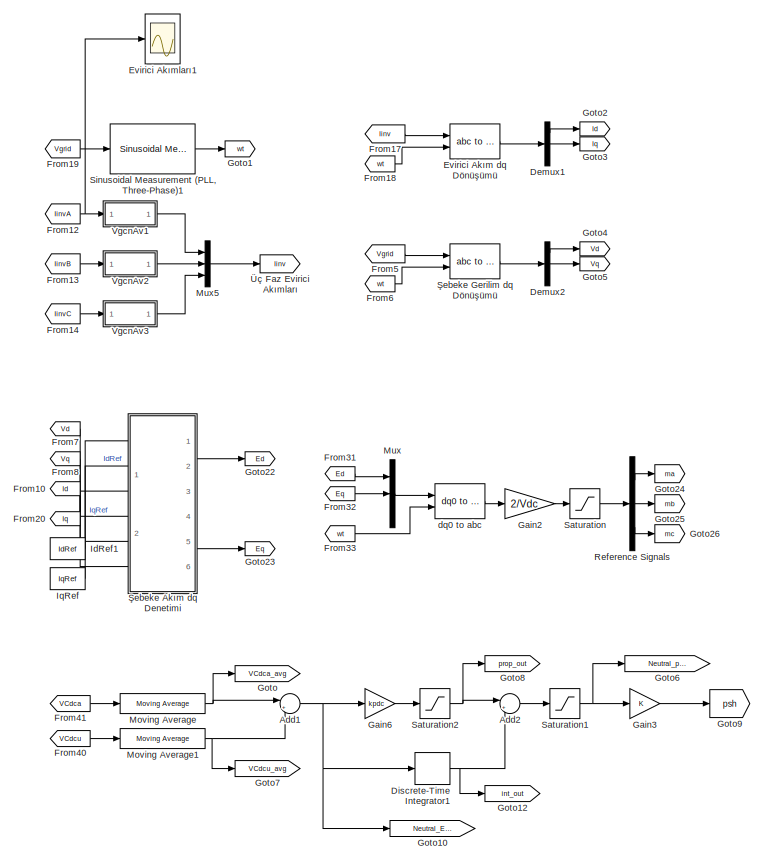
[diagram: root canvas - part 1/3, middle right region]
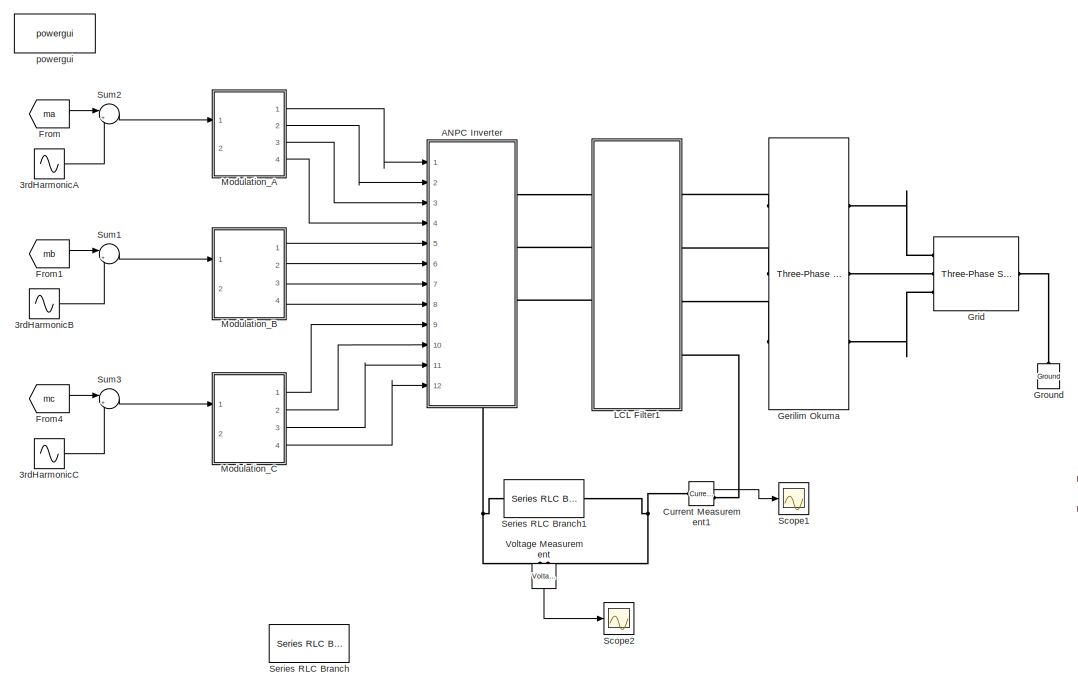
[diagram: root canvas - part 2/3, top left region]
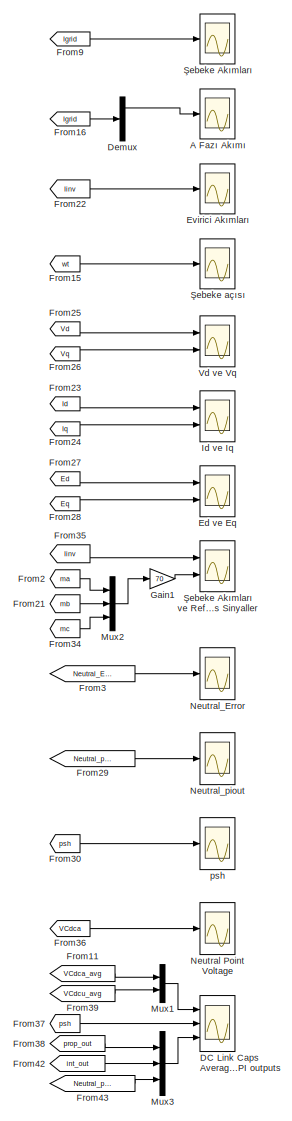
[diagram: root canvas - part 3/3, right side, full height]
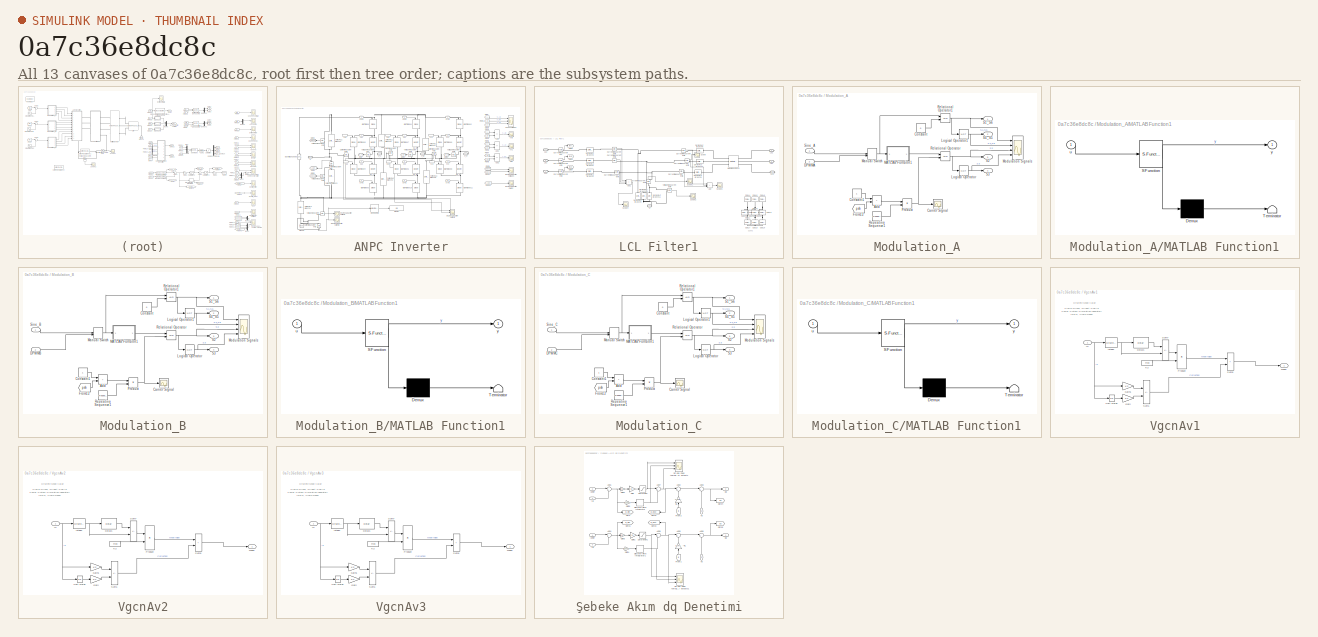
[diagram: thumbnail index - all 13 canvases of the model, root first then tree order]
MODEL slx_0a7c36e8dc8c
KIND model
CONFIG AbsTol = auto
CONFIG EnableMultiTasking = off
CONFIG FixedStep = auto
CONFIG MaxStep = auto
CONFIG MinStep = auto
CONFIG RelTol = 1e-3
CONFIG SampleTimeConstraint = Unconstrained
CONFIG SolverName = FixedStepAuto
CONFIG StartTime = 0.0
CONFIG StopTime = 0.1
WORKSPACE source: mxarray member
WORKSPACE Cdc = 0.000333333333333
WORKSPACE Cf = 9.4e-06
WORKSPACE Ctrap1 = 6e-06
WORKSPACE Ctrap2 = 4e-06
WORKSPACE DPWMGain = 1.04
WORKSPACE IdRef = 127
WORKSPACE IqRef = 0
WORKSPACE Lc = 0.0005
WORKSPACE Lf1 = 0.00015
WORKSPACE Lf2 = 4e-05
WORKSPACE Ltotal = 0.00019
WORKSPACE RLf1 = 0.003
WORKSPACE Rtrap = 0.1
WORKSPACE RtrapP1 = 100
WORKSPACE RtrapP2 = 100
WORKSPACE Ts = 1e-07
WORKSPACE Vdc = 1400
WORKSPACE VppRMS = 800
WORKSPACE fgrid = 50
WORKSPACE fs = 32000
WORKSPACE ki = 1
WORKSPACE ki_th = 600
WORKSPACE kidc = 0.1
WORKSPACE kidc_th = 0.05
WORKSPACE kp = 1
WORKSPACE kp_th = 600
WORKSPACE kpdc = 0.00166666666667
WORKSPACE kpdc_th = 0.05
WORKSPACE offset = -15
WORKSPACE third = 0.16
BLOCK [Sin] 3rdHarmonicA
  Amplitude = third
  Frequency = 2*pi*fgrid*3
  Ports = [0, 1]
  SampleTime = 0
BLOCK [Sin] 3rdHarmonicB
  Amplitude = third
  Frequency = 2*pi*fgrid*3
  Ports = [0, 1]
  SampleTime = 0
BLOCK [Sin] 3rdHarmonicC
  Amplitude = third
  Frequency = 2*pi*fgrid*3
  Ports = [0, 1]
  SampleTime = 0
BLOCK [Scope] A Fazı Akımı
  Floating = off
  NameLocation = right
  NumInputPorts = 1
  Ports = [1]
  ScopeSpecificationString = Simulink.scopes.TimeScopeBlockCfg('CurrentConfiguration', extmgr.ConfigurationSet(extmgr.Configuration('Core','General UI',true,'FigureColor',[1 1 1]),extmgr.Configuration('Core','Source UI',true),extmgr.Configuration('Sources','WiredSimulink',true,'DataLoggingVariableName','Ia','DataLoggingMaxPoints','round(41e-3/Ts)','DataLoggingDecimation','1','DataLoggingDecimateData',true,'DataLogging',true),...<+2944ch>
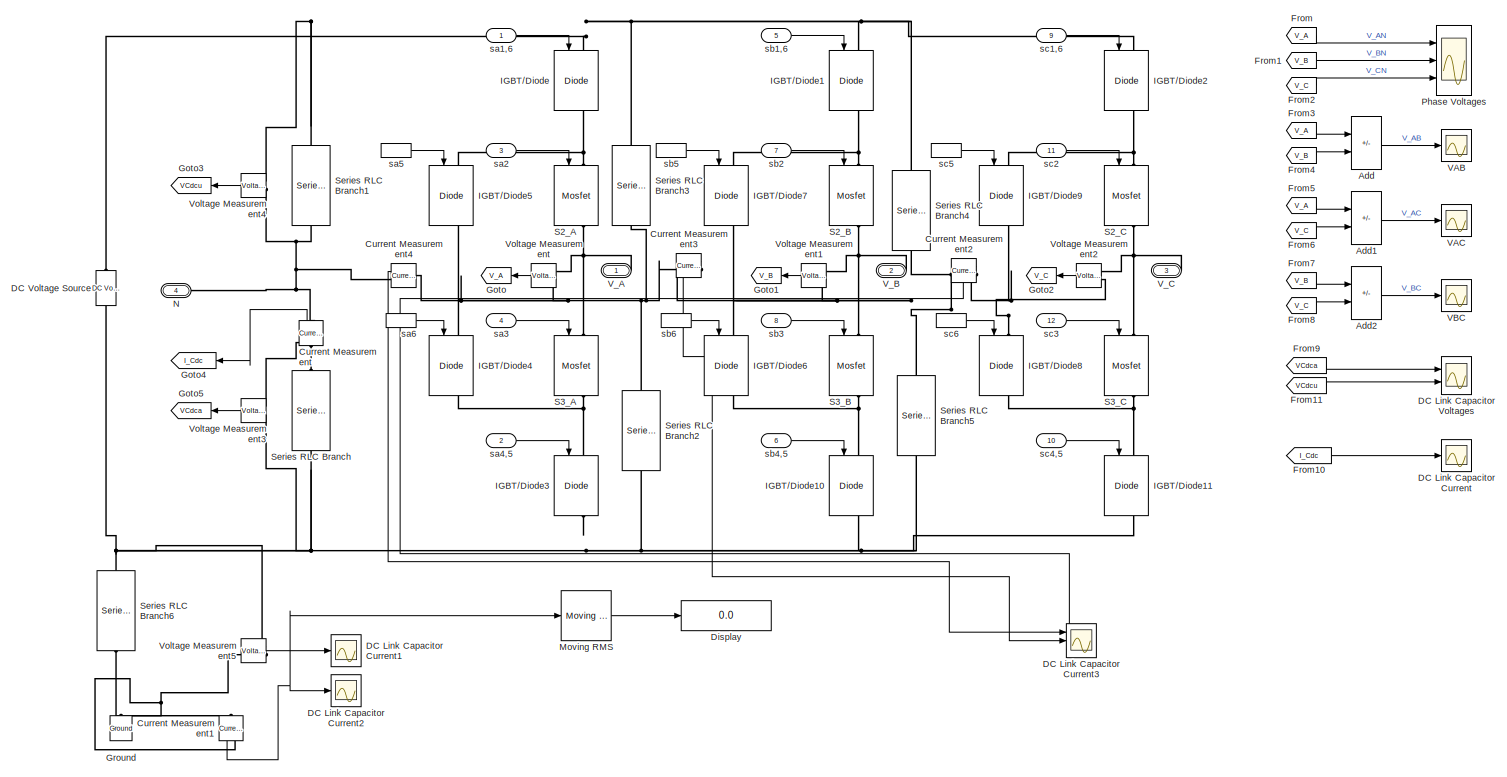
[diagram: ANPC Inverter - part 1/1, most of the canvas]
BLOCK [SubSystem] ANPC Inverter
  NameLocation = top
  PortSchema = {"entries":[{"content":{"sides":[{"content":{"connectorIds":["In1","In2","In3","In4","In5","In6","In7","In8","In9","In10","In11","In12"]},"type":"ConnectorPlacement.EquallySpacedRectSide","uuid":"a224524a-50a8-4cdc-8abb-b6f444590ea5"},{"content":{"connectorIds":["RConn1","RConn2","RConn3"],"side":"RIGHT"},"type":"ConnectorPlacement.EquallySpacedRectSide","uuid":"5c943702-691f-470c-a624-c4353e6a6f2...<+481ch>
  Ports = [12, 0, 0, 0, 0, 0, 4]
  RequestExecContextInheritance = off
BLOCK [Sum] ANPC Inverter/Add
  IconShape = rectangular
  Inputs = +-
  Ports = [2, 1]
BLOCK [Sum] ANPC Inverter/Add1
  IconShape = rectangular
  Inputs = +-
  Ports = [2, 1]
BLOCK [Sum] ANPC Inverter/Add2
  IconShape = rectangular
  Inputs = +-
  Ports = [2, 1]
BLOCK [Reference] ANPC Inverter/Current Measurement  REF=spsCurrentMeasurementLib/Current Measurement
  NameLocation = right
  Ports = [0, 1, 0, 0, 0, 1, 1]
  SourceBlock = spsCurrentMeasurementLib/Current Measurement
  SourceProductBaseCode = PS
  SourceType = Current Measurement
  UserDataPersistent = on
BLOCK [Reference] ANPC Inverter/Current Measurement1  REF=spsCurrentMeasurementLib/Current Measurement
  NameLocation = left
  Ports = [0, 1, 0, 0, 0, 1, 1]
  SourceBlock = spsCurrentMeasurementLib/Current Measurement
  SourceProductBaseCode = PS
  SourceType = Current Measurement
  UserDataPersistent = on
BLOCK [Reference] ANPC Inverter/Current Measurement2  REF=spsCurrentMeasurementLib/Current Measurement
  NameLocation = top
  Ports = [0, 1, 0, 0, 0, 1, 1]
  SourceBlock = spsCurrentMeasurementLib/Current Measurement
  SourceProductBaseCode = PS
  SourceType = Current Measurement
  UserDataPersistent = on
BLOCK [Reference] ANPC Inverter/Current Measurement3  REF=spsCurrentMeasurementLib/Current Measurement
  NameLocation = top
  Ports = [0, 1, 0, 0, 0, 1, 1]
  SourceBlock = spsCurrentMeasurementLib/Current Measurement
  SourceProductBaseCode = PS
  SourceType = Current Measurement
  UserDataPersistent = on
BLOCK [Reference] ANPC Inverter/Current Measurement4  REF=spsCurrentMeasurementLib/Current Measurement
  NameLocation = top
  Ports = [0, 1, 0, 0, 0, 1, 1]
  SourceBlock = spsCurrentMeasurementLib/Current Measurement
  SourceProductBaseCode = PS
  SourceType = Current Measurement
  UserDataPersistent = on
BLOCK [Scope] ANPC Inverter/DC Link Capacitor Current
  Floating = off
  NameLocation = right
  NumInputPorts = 1
  Ports = [1]
  ScopeSpecificationString = Simulink.scopes.TimeScopeBlockCfg('CurrentConfiguration', extmgr.ConfigurationSet(extmgr.Configuration('Core','General UI',true),extmgr.Configuration('Core','Source UI',true),extmgr.Configuration('Sources','WiredSimulink',true,'DataLoggingVariableName','ScopeData6'),extmgr.Configuration('Visuals','Time Domain',true,'SerializedDisplays',{struct('MinYLimReal','-107.55713','MaxYLimReal','151.0135','Y...<+1501ch>
BLOCK [Scope] ANPC Inverter/DC Link Capacitor Current1
  Floating = off
  NameLocation = right
  NumInputPorts = 1
  Ports = [1]
  ScopeSpecificationString = Simulink.scopes.TimeScopeBlockCfg('CurrentConfiguration', extmgr.ConfigurationSet(extmgr.Configuration('Core','General UI',true),extmgr.Configuration('Core','Source UI',true),extmgr.Configuration('Sources','WiredSimulink',true,'DataLoggingVariableName','CMV_NT','DataLogging',true,'DataLoggingSaveFormat','StructureWithTime'),extmgr.Configuration('Visuals','Time Domain',true,'SerializedDisplays',{st...<+1569ch>
BLOCK [Scope] ANPC Inverter/DC Link Capacitor Current2
  Floating = off
  NameLocation = right
  NumInputPorts = 1
  Ports = [1]
  ScopeSpecificationString = Simulink.scopes.TimeScopeBlockCfg('CurrentConfiguration', extmgr.ConfigurationSet(extmgr.Configuration('Core','General UI',true,'FigureColor',[1 1 1]),extmgr.Configuration('Core','Source UI',true),extmgr.Configuration('Sources','WiredSimulink',true,'DataLoggingVariableName','CMC_NT','DataLogging',true,'DataLoggingSaveFormat','StructureWithTime'),extmgr.Configuration('Visuals','Time Domain',true,'S...<+1658ch>
BLOCK [Scope] ANPC Inverter/DC Link Capacitor Current3
  Floating = off
  NameLocation = right
  NumInputPorts = 3
  Ports = [3]
  ScopeSpecificationString = Simulink.scopes.TimeScopeBlockCfg('CurrentConfiguration', extmgr.ConfigurationSet(extmgr.Configuration('Core','General UI',true),extmgr.Configuration('Core','Source UI',true),extmgr.Configuration('Sources','WiredSimulink',true,'DataLoggingVariableName','ScopeData3'),extmgr.Configuration('Visuals','Time Domain',true,'SerializedDisplays',{struct('MinYLimReal','-159.69477','MaxYLimReal','159.25251','...<+3051ch>
BLOCK [Scope] ANPC Inverter/DC Link Capacitor Voltages
  Floating = off
  NameLocation = right
  NumInputPorts = 2
  Ports = [2]
  ScopeSpecificationString = Simulink.scopes.TimeScopeBlockCfg('CurrentConfiguration', extmgr.ConfigurationSet(extmgr.Configuration('Core','General UI',true,'FigureColor',[1 1 1]),extmgr.Configuration('Core','Source UI',true),extmgr.Configuration('Sources','WiredSimulink',true,'DataLoggingVariableName','ScopeData5'),extmgr.Configuration('Visuals','Time Domain',true,'SerializedDisplays',{struct('MinYLimReal','576.73995','MaxYL...<+1526ch>
BLOCK [Reference] ANPC Inverter/DC Voltage Source  REF=spsDCVoltageSourceLib/DC Voltage Source
  Ports = [0, 0, 0, 0, 0, 1, 1]
  SourceBlock = spsDCVoltageSourceLib/DC Voltage Source
  SourceProductBaseCode = PS
  SourceType = DC Voltage Source
BLOCK [Display] ANPC Inverter/Display
  Decimation = 1
  Ports = [1]
BLOCK [From] ANPC Inverter/From
  GotoTag = V_A
BLOCK [From] ANPC Inverter/From1
  GotoTag = V_B
BLOCK [From] ANPC Inverter/From10
  GotoTag = I_Cdc
BLOCK [From] ANPC Inverter/From11
  GotoTag = VCdcu
  TagVisibility = global
BLOCK [From] ANPC Inverter/From2
  GotoTag = V_C
BLOCK [From] ANPC Inverter/From3
  GotoTag = V_A
BLOCK [From] ANPC Inverter/From4
  GotoTag = V_B
BLOCK [From] ANPC Inverter/From5
  GotoTag = V_A
BLOCK [From] ANPC Inverter/From6
  GotoTag = V_C
BLOCK [From] ANPC Inverter/From7
  GotoTag = V_B
BLOCK [From] ANPC Inverter/From8
  GotoTag = V_C
BLOCK [From] ANPC Inverter/From9
  GotoTag = VCdca
  TagVisibility = global
BLOCK [Goto] ANPC Inverter/Goto
  GotoTag = V_A
  NameLocation = top
BLOCK [Goto] ANPC Inverter/Goto1
  GotoTag = V_B
  NameLocation = top
BLOCK [Goto] ANPC Inverter/Goto2
  GotoTag = V_C
  NameLocation = top
BLOCK [Goto] ANPC Inverter/Goto3
  GotoTag = VCdcu
  NameLocation = top
  TagVisibility = global
BLOCK [Goto] ANPC Inverter/Goto4
  GotoTag = I_Cdc
  NameLocation = top
BLOCK [Goto] ANPC Inverter/Goto5
  GotoTag = VCdca
  NameLocation = top
  TagVisibility = global
BLOCK [Reference] ANPC Inverter/Ground  REF=spsGroundLib/Ground
  NameLocation = right
  Ports = [0, 0, 0, 0, 0, 1]
  SourceBlock = spsGroundLib/Ground
  SourceProductBaseCode = PS
  SourceType = Ground
BLOCK [Reference] ANPC Inverter/IGBT//Diode  REF=spsIGBTDiodeLib/IGBT//Diode
  NameLocation = right
  Ports = [1, 1, 0, 0, 0, 1, 1]
  SourceBlock = spsIGBTDiodeLib/IGBT//Diode
  SourceProductBaseCode = PS
  SourceType = IGBT/Diode
BLOCK [Reference] ANPC Inverter/IGBT//Diode1  REF=spsIGBTDiodeLib/IGBT//Diode
  NameLocation = right
  Ports = [1, 1, 0, 0, 0, 1, 1]
  SourceBlock = spsIGBTDiodeLib/IGBT//Diode
  SourceProductBaseCode = PS
  SourceType = IGBT/Diode
BLOCK [Reference] ANPC Inverter/IGBT//Diode10  REF=spsIGBTDiodeLib/IGBT//Diode
  NameLocation = right
  Ports = [1, 1, 0, 0, 0, 1, 1]
  SourceBlock = spsIGBTDiodeLib/IGBT//Diode
  SourceProductBaseCode = PS
  SourceType = IGBT/Diode
BLOCK [Reference] ANPC Inverter/IGBT//Diode11  REF=spsIGBTDiodeLib/IGBT//Diode
  NameLocation = right
  Ports = [1, 1, 0, 0, 0, 1, 1]
  SourceBlock = spsIGBTDiodeLib/IGBT//Diode
  SourceProductBaseCode = PS
  SourceType = IGBT/Diode
BLOCK [Reference] ANPC Inverter/IGBT//Diode2  REF=spsIGBTDiodeLib/IGBT//Diode
  NameLocation = right
  Ports = [1, 1, 0, 0, 0, 1, 1]
  SourceBlock = spsIGBTDiodeLib/IGBT//Diode
  SourceProductBaseCode = PS
  SourceType = IGBT/Diode
BLOCK [Reference] ANPC Inverter/IGBT//Diode3  REF=spsIGBTDiodeLib/IGBT//Diode
  NameLocation = right
  Ports = [1, 1, 0, 0, 0, 1, 1]
  SourceBlock = spsIGBTDiodeLib/IGBT//Diode
  SourceProductBaseCode = PS
  SourceType = IGBT/Diode
BLOCK [Reference] ANPC Inverter/IGBT//Diode4  REF=spsIGBTDiodeLib/IGBT//Diode
  NameLocation = right
  Ports = [1, 1, 0, 0, 0, 1, 1]
  SourceBlock = spsIGBTDiodeLib/IGBT//Diode
  SourceProductBaseCode = PS
  SourceType = IGBT/Diode
BLOCK [Reference] ANPC Inverter/IGBT//Diode5  REF=spsIGBTDiodeLib/IGBT//Diode
  NameLocation = right
  Ports = [1, 1, 0, 0, 0, 1, 1]
  SourceBlock = spsIGBTDiodeLib/IGBT//Diode
  SourceProductBaseCode = PS
  SourceType = IGBT/Diode
BLOCK [Reference] ANPC Inverter/IGBT//Diode6  REF=spsIGBTDiodeLib/IGBT//Diode
  NameLocation = right
  Ports = [1, 1, 0, 0, 0, 1, 1]
  SourceBlock = spsIGBTDiodeLib/IGBT//Diode
  SourceProductBaseCode = PS
  SourceType = IGBT/Diode
BLOCK [Reference] ANPC Inverter/IGBT//Diode7  REF=spsIGBTDiodeLib/IGBT//Diode
  NameLocation = right
  Ports = [1, 1, 0, 0, 0, 1, 1]
  SourceBlock = spsIGBTDiodeLib/IGBT//Diode
  SourceProductBaseCode = PS
  SourceType = IGBT/Diode
BLOCK [Reference] ANPC Inverter/IGBT//Diode8  REF=spsIGBTDiodeLib/IGBT//Diode
  NameLocation = right
  Ports = [1, 1, 0, 0, 0, 1, 1]
  SourceBlock = spsIGBTDiodeLib/IGBT//Diode
  SourceProductBaseCode = PS
  SourceType = IGBT/Diode
BLOCK [Reference] ANPC Inverter/IGBT//Diode9  REF=spsIGBTDiodeLib/IGBT//Diode
  NameLocation = right
  Ports = [1, 1, 0, 0, 0, 1, 1]
  SourceBlock = spsIGBTDiodeLib/IGBT//Diode
  SourceProductBaseCode = PS
  SourceType = IGBT/Diode
BLOCK [Reference] ANPC Inverter/Moving RMS  REF=dspstat3/Moving
RMS
  Commented = on
  Ports = [1, 1]
  SourceBlock = dspstat3/Moving\nRMS
  SourceProductBaseCode = DS
  SourceType = dsp.simulink.MovingRMS
BLOCK [PMIOPort] ANPC Inverter/N
  Port = 4
  Side = Right
BLOCK [Scope] ANPC Inverter/Phase Voltages
  Floating = off
  NameLocation = right
  NumInputPorts = 3
  Ports = [3]
  ScopeSpecificationString = Simulink.scopes.TimeScopeBlockCfg('CurrentConfiguration', extmgr.ConfigurationSet(extmgr.Configuration('Core','General UI',true),extmgr.Configuration('Core','Source UI',true),extmgr.Configuration('Sources','WiredSimulink',true,'DataLoggingVariableName','ScopeData1'),extmgr.Configuration('Visuals','Time Domain',true,'SerializedDisplays',{struct('MinYLimReal','-913.78216','MaxYLimReal','934.13427','...<+2835ch>
BLOCK [Reference] ANPC Inverter/S2_A  REF=spsMosfetLib/Mosfet
  NameLocation = left
  Ports = [1, 1, 0, 0, 0, 1, 1]
  SourceBlock = spsMosfetLib/Mosfet
  SourceProductBaseCode = PS
  SourceType = Mosfet
BLOCK [Reference] ANPC Inverter/S2_B  REF=spsMosfetLib/Mosfet
  NameLocation = left
  Ports = [1, 1, 0, 0, 0, 1, 1]
  SourceBlock = spsMosfetLib/Mosfet
  SourceProductBaseCode = PS
  SourceType = Mosfet
BLOCK [Reference] ANPC Inverter/S2_C  REF=spsMosfetLib/Mosfet
  NameLocation = left
  Ports = [1, 1, 0, 0, 0, 1, 1]
  SourceBlock = spsMosfetLib/Mosfet
  SourceProductBaseCode = PS
  SourceType = Mosfet
BLOCK [Reference] ANPC Inverter/S3_A  REF=spsMosfetLib/Mosfet
  NameLocation = left
  Ports = [1, 1, 0, 0, 0, 1, 1]
  SourceBlock = spsMosfetLib/Mosfet
  SourceProductBaseCode = PS
  SourceType = Mosfet
BLOCK [Reference] ANPC Inverter/S3_B  REF=spsMosfetLib/Mosfet
  NameLocation = left
  Ports = [1, 1, 0, 0, 0, 1, 1]
  SourceBlock = spsMosfetLib/Mosfet
  SourceProductBaseCode = PS
  SourceType = Mosfet
BLOCK [Reference] ANPC Inverter/S3_C  REF=spsMosfetLib/Mosfet
  NameLocation = left
  Ports = [1, 1, 0, 0, 0, 1, 1]
  SourceBlock = spsMosfetLib/Mosfet
  SourceProductBaseCode = PS
  SourceType = Mosfet
BLOCK [Reference] ANPC Inverter/Series RLC Branch  REF=spsSeriesRLCBranchLib/Series RLC Branch
  NameLocation = left
  Ports = [0, 0, 0, 0, 0, 1, 1]
  SourceBlock = spsSeriesRLCBranchLib/Series RLC Branch
  SourceProductBaseCode = PS
  SourceType = Series RLC Branch
BLOCK [Reference] ANPC Inverter/Series RLC Branch1  REF=spsSeriesRLCBranchLib/Series RLC Branch
  NameLocation = left
  Ports = [0, 0, 0, 0, 0, 1, 1]
  SourceBlock = spsSeriesRLCBranchLib/Series RLC Branch
  SourceProductBaseCode = PS
  SourceType = Series RLC Branch
BLOCK [Reference] ANPC Inverter/Series RLC Branch2  REF=spsSeriesRLCBranchLib/Series RLC Branch
  NameLocation = left
  Ports = [0, 0, 0, 0, 0, 1, 1]
  SourceBlock = spsSeriesRLCBranchLib/Series RLC Branch
  SourceProductBaseCode = PS
  SourceType = Series RLC Branch
BLOCK [Reference] ANPC Inverter/Series RLC Branch3  REF=spsSeriesRLCBranchLib/Series RLC Branch
  NameLocation = left
  Ports = [0, 0, 0, 0, 0, 1, 1]
  SourceBlock = spsSeriesRLCBranchLib/Series RLC Branch
  SourceProductBaseCode = PS
  SourceType = Series RLC Branch
BLOCK [Reference] ANPC Inverter/Series RLC Branch4  REF=spsSeriesRLCBranchLib/Series RLC Branch
  NameLocation = left
  Ports = [0, 0, 0, 0, 0, 1, 1]
  SourceBlock = spsSeriesRLCBranchLib/Series RLC Branch
  SourceProductBaseCode = PS
  SourceType = Series RLC Branch
BLOCK [Reference] ANPC Inverter/Series RLC Branch5  REF=spsSeriesRLCBranchLib/Series RLC Branch
  NameLocation = left
  Ports = [0, 0, 0, 0, 0, 1, 1]
  SourceBlock = spsSeriesRLCBranchLib/Series RLC Branch
  SourceProductBaseCode = PS
  SourceType = Series RLC Branch
BLOCK [Reference] ANPC Inverter/Series RLC Branch6  REF=spsSeriesRLCBranchLib/Series RLC Branch
  NameLocation = left
  Ports = [0, 0, 0, 0, 0, 1, 1]
  SourceBlock = spsSeriesRLCBranchLib/Series RLC Branch
  SourceProductBaseCode = PS
  SourceType = Series RLC Branch
BLOCK [Scope] ANPC Inverter/VAB
  Floating = off
  NameLocation = right
  NumInputPorts = 1
  Ports = [1]
  ScopeSpecificationString = Simulink.scopes.TimeScopeBlockCfg('CurrentConfiguration', extmgr.ConfigurationSet(extmgr.Configuration('Core','General UI',true),extmgr.Configuration('Core','Source UI',true),extmgr.Configuration('Sources','WiredSimulink',true,'DataLoggingVariableName','ScopeData2'),extmgr.Configuration('Visuals','Time Domain',true,'SerializedDisplays',{struct('MinYLimReal','-1524.01963','MaxYLimReal','1444.9677',...<+1457ch>
BLOCK [Scope] ANPC Inverter/VAC
  Floating = off
  NameLocation = right
  NumInputPorts = 1
  Ports = [1]
  ScopeSpecificationString = Simulink.scopes.TimeScopeBlockCfg('CurrentConfiguration', extmgr.ConfigurationSet(extmgr.Configuration('Core','General UI',true),extmgr.Configuration('Core','Source UI',true),extmgr.Configuration('Sources','WiredSimulink',true,'DataLoggingVariableName','ScopeData3'),extmgr.Configuration('Visuals','Time Domain',true),extmgr.Configuration('Tools','Plot Navigation',true),extmgr.Configuration('Tools',...<+40ch>
BLOCK [Scope] ANPC Inverter/VBC
  Floating = off
  NameLocation = right
  NumInputPorts = 1
  Ports = [1]
  ScopeSpecificationString = Simulink.scopes.TimeScopeBlockCfg('CurrentConfiguration', extmgr.ConfigurationSet(extmgr.Configuration('Core','General UI',true),extmgr.Configuration('Core','Source UI',true),extmgr.Configuration('Sources','WiredSimulink',true,'DataLoggingVariableName','ScopeData4'),extmgr.Configuration('Visuals','Time Domain',true),extmgr.Configuration('Tools','Plot Navigation',true),extmgr.Configuration('Tools',...<+40ch>
BLOCK [PMIOPort] ANPC Inverter/V_A
  Side = Right
BLOCK [PMIOPort] ANPC Inverter/V_B
  Port = 2
  Side = Right
BLOCK [PMIOPort] ANPC Inverter/V_C
  Port = 3
  Side = Right
BLOCK [Reference] ANPC Inverter/Voltage Measurement  REF=spsVoltageMeasurementLib/Voltage Measurement
  Ports = [0, 1, 0, 0, 0, 2]
  SourceBlock = spsVoltageMeasurementLib/Voltage Measurement
  SourceProductBaseCode = PS
  SourceType = Voltage Measurement
  UserDataPersistent = on
BLOCK [Reference] ANPC Inverter/Voltage Measurement1  REF=spsVoltageMeasurementLib/Voltage Measurement
  Ports = [0, 1, 0, 0, 0, 2]
  SourceBlock = spsVoltageMeasurementLib/Voltage Measurement
  SourceProductBaseCode = PS
  SourceType = Voltage Measurement
  UserDataPersistent = on
BLOCK [Reference] ANPC Inverter/Voltage Measurement2  REF=spsVoltageMeasurementLib/Voltage Measurement
  Ports = [0, 1, 0, 0, 0, 2]
  SourceBlock = spsVoltageMeasurementLib/Voltage Measurement
  SourceProductBaseCode = PS
  SourceType = Voltage Measurement
  UserDataPersistent = on
BLOCK [Reference] ANPC Inverter/Voltage Measurement3  REF=spsVoltageMeasurementLib/Voltage Measurement
  Ports = [0, 1, 0, 0, 0, 2]
  SourceBlock = spsVoltageMeasurementLib/Voltage Measurement
  SourceProductBaseCode = PS
  SourceType = Voltage Measurement
  UserDataPersistent = on
BLOCK [Reference] ANPC Inverter/Voltage Measurement4  REF=spsVoltageMeasurementLib/Voltage Measurement
  Ports = [0, 1, 0, 0, 0, 2]
  SourceBlock = spsVoltageMeasurementLib/Voltage Measurement
  SourceProductBaseCode = PS
  SourceType = Voltage Measurement
  UserDataPersistent = on
BLOCK [Reference] ANPC Inverter/Voltage Measurement5  REF=spsVoltageMeasurementLib/Voltage Measurement
  NameLocation = top
  Ports = [0, 1, 0, 0, 0, 2]
  SourceBlock = spsVoltageMeasurementLib/Voltage Measurement
  SourceProductBaseCode = PS
  SourceType = Voltage Measurement
  UserDataPersistent = on
BLOCK [Inport] ANPC Inverter/sa1,6
BLOCK [Inport] ANPC Inverter/sa2
  Port = 3
BLOCK [Inport] ANPC Inverter/sa3
  Port = 4
BLOCK [Inport] ANPC Inverter/sa4,5
  Port = 2
BLOCK [InportShadow] ANPC Inverter/sa5
  Port = 2
BLOCK [InportShadow] ANPC Inverter/sa6
BLOCK [Inport] ANPC Inverter/sb1,6
  Port = 5
BLOCK [Inport] ANPC Inverter/sb2
  Port = 7
BLOCK [Inport] ANPC Inverter/sb3
  Port = 8
BLOCK [Inport] ANPC Inverter/sb4,5
  Port = 6
BLOCK [InportShadow] ANPC Inverter/sb5
  Port = 6
BLOCK [InportShadow] ANPC Inverter/sb6
  Port = 5
BLOCK [Inport] ANPC Inverter/sc1,6
  Port = 9
BLOCK [Inport] ANPC Inverter/sc2
  Port = 11
BLOCK [Inport] ANPC Inverter/sc3
  Port = 12
BLOCK [Inport] ANPC Inverter/sc4,5
  Port = 10
BLOCK [InportShadow] ANPC Inverter/sc5
  Port = 10
BLOCK [InportShadow] ANPC Inverter/sc6
  Port = 9
BLOCK [Sum] Add1
  Inputs = |+-
  Ports = [2, 1]
BLOCK [Sum] Add2
  Inputs = |++
  Ports = [2, 1]
BLOCK [Reference] Current Measurement1  REF=spsCurrentMeasurementLib/Current Measurement
  Ports = [0, 1, 0, 0, 0, 1, 1]
  SourceBlock = spsCurrentMeasurementLib/Current Measurement
  SourceProductBaseCode = PS
  SourceType = Current Measurement
  UserDataPersistent = on
BLOCK [Scope] DC Link Caps Average Voltages psh PI outputs
  Floating = off
  NameLocation = right
  NumInputPorts = 3
  Ports = [3]
  ScopeSpecificationString = Simulink.scopes.TimeScopeBlockCfg('CurrentConfiguration', extmgr.ConfigurationSet(extmgr.Configuration('Core','General UI',true,'FigureColor',[1 1 1]),extmgr.Configuration('Core','Source UI',true),extmgr.Configuration('Sources','WiredSimulink',true,'DataLoggingVariableName','ScopeData1','DataLoggingMaxPoints','round(41e-3/Ts)','DataLoggingDecimation','1'),extmgr.Configuration('Visuals','Time Domai...<+4087ch>
BLOCK [Demux] Demux
  Outputs = 3
  Ports = [1, 3]
BLOCK [Demux] Demux1
  Outputs = 3
  Ports = [1, 3]
BLOCK [Demux] Demux2
  Outputs = 3
  Ports = [1, 3]
BLOCK [DiscreteIntegrator] Discrete-Time Integrator1
  ICPrevOutput = DiscIntNeverNeededParam
  ICPrevScaledInput = DiscIntNeverNeededParam
  InitialConditionSetting = Auto
  LimitOutput = on
  LowerSaturationLimit = -kidc_th
  Ports = [1, 1]
  SampleTime = -1
  UpperSaturationLimit = kidc_th
  gainval = kidc
BLOCK [Scope] Ed ve Eq
  Floating = off
  NameLocation = right
  NumInputPorts = 2
  Ports = [2]
  ScopeSpecificationString = Simulink.scopes.TimeScopeBlockCfg('CurrentConfiguration', extmgr.ConfigurationSet(extmgr.Configuration('Core','General UI',true,'FigureColor',[1 1 1]),extmgr.Configuration('Core','Source UI',true),extmgr.Configuration('Sources','WiredSimulink',true,'DataLoggingVariableName','ScopeData12','DataLoggingMaxPoints','round(41e-3/Ts)','DataLoggingDecimation','1'),extmgr.Configuration('Visuals','Time Doma...<+2946ch>
BLOCK [Reference] Evirici Akım dq Dönüşümü  REF=spsabctodq0Lib/abc to dq0
  Ports = [2, 1]
  SourceBlock = spsabctodq0Lib/abc to dq0
  SourceProductBaseCode = PS
  SourceType = abc to dq0 Transformation
BLOCK [Scope] Evirici Akımları
  Floating = off
  NameLocation = right
  NumInputPorts = 1
  Ports = [1]
  ScopeSpecificationString = Simulink.scopes.TimeScopeBlockCfg('CurrentConfiguration', extmgr.ConfigurationSet(extmgr.Configuration('Core','General UI',true,'FigureColor',[1 1 1]),extmgr.Configuration('Core','Source UI',true),extmgr.Configuration('Sources','WiredSimulink',true,'DataLoggingVariableName','ScopeData8','DataLoggingMaxPoints','round(41e-3/Ts)','DataLoggingDecimation','1'),extmgr.Configuration('Visuals','Time Domai...<+3262ch>
BLOCK [Scope] Evirici Akımları1
  Floating = off
  NameLocation = right
  NumInputPorts = 1
  Ports = [1]
  ScopeSpecificationString = Simulink.scopes.TimeScopeBlockCfg('CurrentConfiguration', extmgr.ConfigurationSet(extmgr.Configuration('Core','General UI',true,'FigureColor',[1 1 1]),extmgr.Configuration('Core','Source UI',true),extmgr.Configuration('Sources','WiredSimulink',true,'DataLoggingVariableName','IL1','DataLoggingMaxPoints','round(41e-3/Ts)','DataLoggingDecimation','1','DataLogging',true),extmgr.Configuration('Visuals'...<+3229ch>
BLOCK [From] From
  GotoTag = ma
BLOCK [From] From1
  GotoTag = mb
BLOCK [From] From10
  GotoTag = Id
BLOCK [From] From11
  GotoTag = VCdca_avg
BLOCK [From] From12
  GotoTag = IinvA
  TagVisibility = global
BLOCK [From] From13
  GotoTag = IinvB
  TagVisibility = global
BLOCK [From] From14
  GotoTag = IinvC
  TagVisibility = global
BLOCK [From] From15
  GotoTag = wt
BLOCK [From] From16
  GotoTag = Igrid
  TagVisibility = global
BLOCK [From] From17
  GotoTag = Iinv
BLOCK [From] From18
  GotoTag = wt
BLOCK [From] From19
  GotoTag = Vgrid
  TagVisibility = global
BLOCK [From] From2
  GotoTag = ma
BLOCK [From] From20
  GotoTag = Iq
BLOCK [From] From21
  GotoTag = mb
BLOCK [From] From22
  GotoTag = Iinv
BLOCK [From] From23
  GotoTag = Id
BLOCK [From] From24
  GotoTag = Iq
BLOCK [From] From25
  GotoTag = Vd
BLOCK [From] From26
  GotoTag = Vq
BLOCK [From] From27
  GotoTag = Ed
BLOCK [From] From28
  GotoTag = Eq
BLOCK [From] From29
  GotoTag = Neutral_piout
BLOCK [From] From3
  GotoTag = Neutral_Error
BLOCK [From] From30
  GotoTag = psh
  TagVisibility = global
BLOCK [From] From31
  GotoTag = Ed
BLOCK [From] From32
  GotoTag = Eq
BLOCK [From] From33
  GotoTag = wt
BLOCK [From] From34
  GotoTag = mc
BLOCK [From] From35
  GotoTag = Iinv
BLOCK [From] From36
  GotoTag = VCdca
  NameLocation = top
  TagVisibility = global
BLOCK [From] From37
  GotoTag = psh
  TagVisibility = global
BLOCK [From] From38
  GotoTag = prop_out
BLOCK [From] From39
  GotoTag = VCdcu_avg
BLOCK [From] From4
  GotoTag = mc
BLOCK [From] From40
  GotoTag = VCdcu
  TagVisibility = global
BLOCK [From] From41
  GotoTag = VCdca
  TagVisibility = global
BLOCK [From] From42
  GotoTag = int_out
BLOCK [From] From43
  GotoTag = Neutral_piout
BLOCK [From] From5
  GotoTag = Vgrid
  TagVisibility = global
BLOCK [From] From6
  GotoTag = wt
BLOCK [From] From7
  GotoTag = Vd
BLOCK [From] From8
  GotoTag = Vq
BLOCK [From] From9
  GotoTag = Igrid
  TagVisibility = global
BLOCK [Gain] Gain1
  Gain = 70
BLOCK [Gain] Gain2
  Gain = 2/Vdc
BLOCK [Gain] Gain3
BLOCK [Gain] Gain6
  Gain = kpdc
BLOCK [Reference] Gerilim Okuma  REF=spsThreePhaseVIMeasurementLib/Three-Phase
V-I Measurement
  Ports = [0, 0, 0, 0, 0, 3, 3]
  SourceBlock = spsThreePhaseVIMeasurementLib/Three-Phase\nV-I Measurement
  SourceProductBaseCode = PS
  SourceType = Three-Phase VI Measurement
BLOCK [Goto] Goto
  GotoTag = VCdca_avg
BLOCK [Goto] Goto1
  GotoTag = wt
BLOCK [Goto] Goto10
  GotoTag = Neutral_Error
BLOCK [Goto] Goto12
  GotoTag = int_out
BLOCK [Goto] Goto2
  GotoTag = Id
BLOCK [Goto] Goto22
  GotoTag = Ed
BLOCK [Goto] Goto23
  GotoTag = Eq
BLOCK [Goto] Goto24
  GotoTag = ma
BLOCK [Goto] Goto25
  GotoTag = mb
BLOCK [Goto] Goto26
  GotoTag = mc
BLOCK [Goto] Goto3
  GotoTag = Iq
BLOCK [Goto] Goto4
  GotoTag = Vd
BLOCK [Goto] Goto5
  GotoTag = Vq
BLOCK [Goto] Goto6
  GotoTag = Neutral_piout
BLOCK [Goto] Goto7
  GotoTag = VCdcu_avg
BLOCK [Goto] Goto8
  GotoTag = prop_out
BLOCK [Goto] Goto9
  GotoTag = psh
  TagVisibility = global
BLOCK [Reference] Grid  REF=spsThreePhaseSourceLib/Three-Phase Source
  NameLocation = top
  Ports = [0, 0, 0, 0, 0, 1, 3]
  SourceBlock = spsThreePhaseSourceLib/Three-Phase Source
  SourceProductBaseCode = PS
  SourceType = Three-Phase Source
BLOCK [Reference] Ground  REF=spsGroundLib/Ground
  NameLocation = right
  Ports = [0, 0, 0, 0, 0, 1]
  SourceBlock = spsGroundLib/Ground
  SourceProductBaseCode = PS
  SourceType = Ground
BLOCK [Scope] Id ve Iq
  Floating = off
  NameLocation = right
  NumInputPorts = 2
  Ports = [2]
  ScopeSpecificationString = Simulink.scopes.TimeScopeBlockCfg('CurrentConfiguration', extmgr.ConfigurationSet(extmgr.Configuration('Core','General UI',true,'FigureColor',[1 1 1]),extmgr.Configuration('Core','Source UI',true),extmgr.Configuration('Sources','WiredSimulink',true,'DataLoggingVariableName','ScopeData11','DataLoggingMaxPoints','round(41e-3/Ts)','DataLoggingDecimation','1'),extmgr.Configuration('Visuals','Time Doma...<+2905ch>
BLOCK [Constant] IdRef1
  NameLocation = right
  Value = IdRef
BLOCK [Constant] IqRef
  NameLocation = right
  Value = IqRef
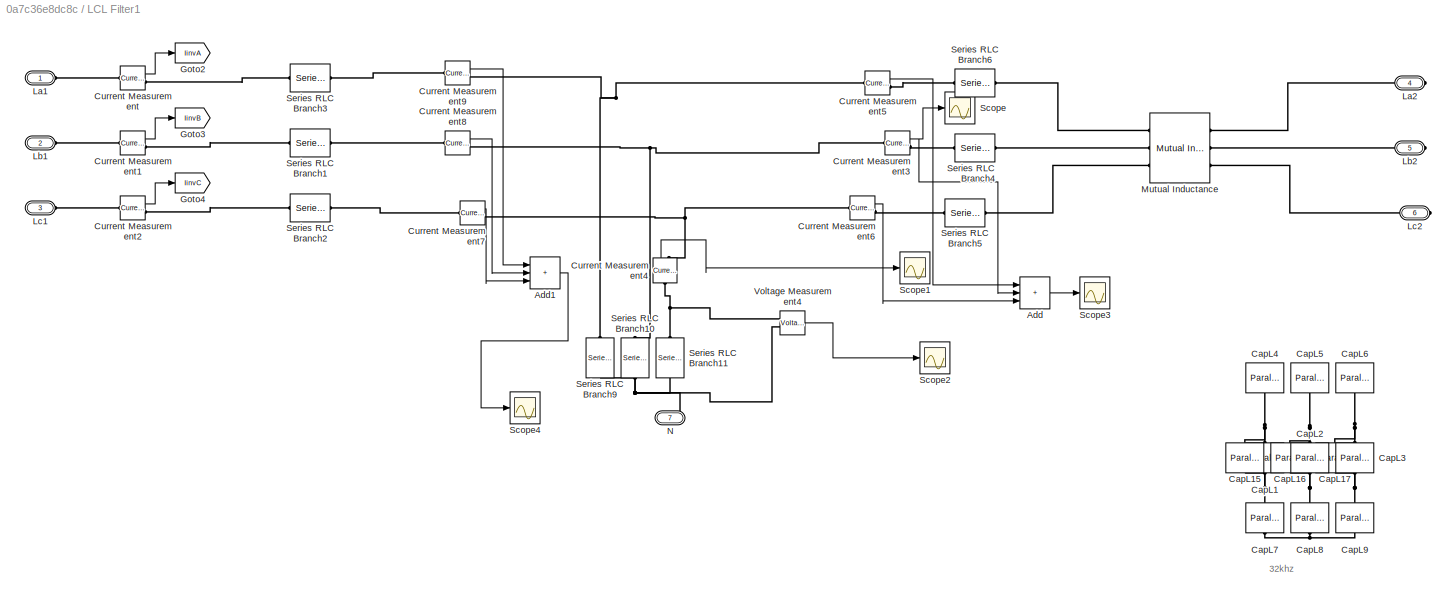
BLOCK [SubSystem] LCL Filter1
  NameLocation = top
  PortSchema = {"entries":[{"content":{"sides":[{"content":{"connectorIds":["LConn1","LConn2","LConn3"]},"type":"ConnectorPlacement.EquallySpacedRectSide","uuid":"bea0e094-116c-4830-9da4-a9503c8d7f59"},{"content":{"connectorIds":["RConn1","RConn2","RConn3"],"side":"RIGHT"},"type":"ConnectorPlacement.EquallySpacedRectSide","uuid":"b52ba564-80df-4338-84ec-522ca4a71e6b"},{"content":{"connectorIds":[],"side":"TOP"},...<+433ch>
  Ports = [0, 0, 0, 0, 0, 3, 4]
  RequestExecContextInheritance = off
BLOCK [Sum] LCL Filter1/Add
  IconShape = rectangular
  Inputs = +++
  Ports = [3, 1]
BLOCK [Sum] LCL Filter1/Add1
  IconShape = rectangular
  Inputs = +++
  Ports = [3, 1]
BLOCK [Reference] LCL Filter1/CapL1  REF=spsParallelRLCBranchLib/Parallel RLC Branch
  AttributesFormatString = \n
  NameLocation = right
  Ports = [0, 0, 0, 0, 0, 1, 1]
  SourceBlock = spsParallelRLCBranchLib/Parallel RLC Branch
  SourceProductBaseCode = PS
  SourceType = Parallel RLC Branch
BLOCK [Reference] LCL Filter1/CapL15  REF=spsParallelRLCBranchLib/Parallel RLC Branch
  AttributesFormatString = \n
  NameLocation = right
  Ports = [0, 0, 0, 0, 0, 1, 1]
  SourceBlock = spsParallelRLCBranchLib/Parallel RLC Branch
  SourceProductBaseCode = PS
  SourceType = Parallel RLC Branch
BLOCK [Reference] LCL Filter1/CapL16  REF=spsParallelRLCBranchLib/Parallel RLC Branch
  AttributesFormatString = \n
  NameLocation = right
  Ports = [0, 0, 0, 0, 0, 1, 1]
  SourceBlock = spsParallelRLCBranchLib/Parallel RLC Branch
  SourceProductBaseCode = PS
  SourceType = Parallel RLC Branch
BLOCK [Reference] LCL Filter1/CapL17  REF=spsParallelRLCBranchLib/Parallel RLC Branch
  AttributesFormatString = \n
  NameLocation = right
  Ports = [0, 0, 0, 0, 0, 1, 1]
  SourceBlock = spsParallelRLCBranchLib/Parallel RLC Branch
  SourceProductBaseCode = PS
  SourceType = Parallel RLC Branch
BLOCK [Reference] LCL Filter1/CapL2  REF=spsParallelRLCBranchLib/Parallel RLC Branch
  AttributesFormatString = \n
  NameLocation = right
  Ports = [0, 0, 0, 0, 0, 1, 1]
  SourceBlock = spsParallelRLCBranchLib/Parallel RLC Branch
  SourceProductBaseCode = PS
  SourceType = Parallel RLC Branch
BLOCK [Reference] LCL Filter1/CapL3  REF=spsParallelRLCBranchLib/Parallel RLC Branch
  AttributesFormatString = \n
  NameLocation = right
  Ports = [0, 0, 0, 0, 0, 1, 1]
  SourceBlock = spsParallelRLCBranchLib/Parallel RLC Branch
  SourceProductBaseCode = PS
  SourceType = Parallel RLC Branch
BLOCK [Reference] LCL Filter1/CapL4  REF=spsParallelRLCBranchLib/Parallel RLC Branch
  AttributesFormatString = \n
  NameLocation = right
  Ports = [0, 0, 0, 0, 0, 1, 1]
  SourceBlock = spsParallelRLCBranchLib/Parallel RLC Branch
  SourceProductBaseCode = PS
  SourceType = Parallel RLC Branch
BLOCK [Reference] LCL Filter1/CapL5  REF=spsParallelRLCBranchLib/Parallel RLC Branch
  AttributesFormatString = \n
  NameLocation = right
  Ports = [0, 0, 0, 0, 0, 1, 1]
  SourceBlock = spsParallelRLCBranchLib/Parallel RLC Branch
  SourceProductBaseCode = PS
  SourceType = Parallel RLC Branch
BLOCK [Reference] LCL Filter1/CapL6  REF=spsParallelRLCBranchLib/Parallel RLC Branch
  AttributesFormatString = \n
  NameLocation = right
  Ports = [0, 0, 0, 0, 0, 1, 1]
  SourceBlock = spsParallelRLCBranchLib/Parallel RLC Branch
  SourceProductBaseCode = PS
  SourceType = Parallel RLC Branch
BLOCK [Reference] LCL Filter1/CapL7  REF=spsParallelRLCBranchLib/Parallel RLC Branch
  AttributesFormatString = \n
  NameLocation = right
  Ports = [0, 0, 0, 0, 0, 1, 1]
  SourceBlock = spsParallelRLCBranchLib/Parallel RLC Branch
  SourceProductBaseCode = PS
  SourceType = Parallel RLC Branch
BLOCK [Reference] LCL Filter1/CapL8  REF=spsParallelRLCBranchLib/Parallel RLC Branch
  AttributesFormatString = \n
  NameLocation = right
  Ports = [0, 0, 0, 0, 0, 1, 1]
  SourceBlock = spsParallelRLCBranchLib/Parallel RLC Branch
  SourceProductBaseCode = PS
  SourceType = Parallel RLC Branch
BLOCK [Reference] LCL Filter1/CapL9  REF=spsParallelRLCBranchLib/Parallel RLC Branch
  AttributesFormatString = \n
  NameLocation = right
  Ports = [0, 0, 0, 0, 0, 1, 1]
  SourceBlock = spsParallelRLCBranchLib/Parallel RLC Branch
  SourceProductBaseCode = PS
  SourceType = Parallel RLC Branch
BLOCK [Reference] LCL Filter1/Current Measurement  REF=spsCurrentMeasurementLib/Current Measurement
  Ports = [0, 1, 0, 0, 0, 1, 1]
  SourceBlock = spsCurrentMeasurementLib/Current Measurement
  SourceProductBaseCode = PS
  SourceType = Current Measurement
  UserDataPersistent = on
BLOCK [Reference] LCL Filter1/Current Measurement1  REF=spsCurrentMeasurementLib/Current Measurement
  Ports = [0, 1, 0, 0, 0, 1, 1]
  SourceBlock = spsCurrentMeasurementLib/Current Measurement
  SourceProductBaseCode = PS
  SourceType = Current Measurement
  UserDataPersistent = on
BLOCK [Reference] LCL Filter1/Current Measurement2  REF=spsCurrentMeasurementLib/Current Measurement
  Ports = [0, 1, 0, 0, 0, 1, 1]
  SourceBlock = spsCurrentMeasurementLib/Current Measurement
  SourceProductBaseCode = PS
  SourceType = Current Measurement
  UserDataPersistent = on
BLOCK [Reference] LCL Filter1/Current Measurement3  REF=spsCurrentMeasurementLib/Current Measurement
  Ports = [0, 1, 0, 0, 0, 1, 1]
  SourceBlock = spsCurrentMeasurementLib/Current Measurement
  SourceProductBaseCode = PS
  SourceType = Current Measurement
  UserDataPersistent = on
BLOCK [Reference] LCL Filter1/Current Measurement4  REF=spsCurrentMeasurementLib/Current Measurement
  NameLocation = right
  Ports = [0, 1, 0, 0, 0, 1, 1]
  SourceBlock = spsCurrentMeasurementLib/Current Measurement
  SourceProductBaseCode = PS
  SourceType = Current Measurement
  UserDataPersistent = on
BLOCK [Reference] LCL Filter1/Current Measurement5  REF=spsCurrentMeasurementLib/Current Measurement
  Ports = [0, 1, 0, 0, 0, 1, 1]
  SourceBlock = spsCurrentMeasurementLib/Current Measurement
  SourceProductBaseCode = PS
  SourceType = Current Measurement
  UserDataPersistent = on
BLOCK [Reference] LCL Filter1/Current Measurement6  REF=spsCurrentMeasurementLib/Current Measurement
  Ports = [0, 1, 0, 0, 0, 1, 1]
  SourceBlock = spsCurrentMeasurementLib/Current Measurement
  SourceProductBaseCode = PS
  SourceType = Current Measurement
  UserDataPersistent = on
BLOCK [Reference] LCL Filter1/Current Measurement7  REF=spsCurrentMeasurementLib/Current Measurement
  Ports = [0, 1, 0, 0, 0, 1, 1]
  SourceBlock = spsCurrentMeasurementLib/Current Measurement
  SourceProductBaseCode = PS
  SourceType = Current Measurement
  UserDataPersistent = on
BLOCK [Reference] LCL Filter1/Current Measurement8  REF=spsCurrentMeasurementLib/Current Measurement
  Ports = [0, 1, 0, 0, 0, 1, 1]
  SourceBlock = spsCurrentMeasurementLib/Current Measurement
  SourceProductBaseCode = PS
  SourceType = Current Measurement
  UserDataPersistent = on
BLOCK [Reference] LCL Filter1/Current Measurement9  REF=spsCurrentMeasurementLib/Current Measurement
  Ports = [0, 1, 0, 0, 0, 1, 1]
  SourceBlock = spsCurrentMeasurementLib/Current Measurement
  SourceProductBaseCode = PS
  SourceType = Current Measurement
  UserDataPersistent = on
BLOCK [Goto] LCL Filter1/Goto2
  GotoTag = IinvA
  TagVisibility = global
BLOCK [Goto] LCL Filter1/Goto3
  GotoTag = IinvB
  TagVisibility = global
BLOCK [Goto] LCL Filter1/Goto4
  GotoTag = IinvC
  TagVisibility = global
BLOCK [PMIOPort] LCL Filter1/La1
  Side = Left
BLOCK [PMIOPort] LCL Filter1/La2
  Port = 4
  Side = Right
BLOCK [PMIOPort] LCL Filter1/Lb1
  Port = 2
  Side = Left
BLOCK [PMIOPort] LCL Filter1/Lb2
  Port = 5
  Side = Right
BLOCK [PMIOPort] LCL Filter1/Lc1
  Port = 3
  Side = Left
BLOCK [PMIOPort] LCL Filter1/Lc2
  Port = 6
  Side = Right
BLOCK [Reference] LCL Filter1/Mutual Inductance  REF=spsMutualInductanceLib/Mutual Inductance
  AttributesFormatString = \n
  Ports = [0, 0, 0, 0, 0, 3, 3]
  SourceBlock = spsMutualInductanceLib/Mutual Inductance
  SourceProductBaseCode = PS
  SourceType = Mutual Inductance
BLOCK [PMIOPort] LCL Filter1/N
  Port = 7
  Side = Right
BLOCK [Scope] LCL Filter1/Scope
  Floating = off
  NumInputPorts = 1
  Ports = [1]
  ScopeSpecificationString = Simulink.scopes.TimeScopeBlockCfg('CurrentConfiguration', extmgr.ConfigurationSet(extmgr.Configuration('Core','General UI',true),extmgr.Configuration('Core','Source UI',true),extmgr.Configuration('Sources','WiredSimulink',true,'DataLoggingVariableName','ScopeData1'),extmgr.Configuration('Visuals','Time Domain',true,'SerializedDisplays',{struct('MinYLimReal','-346.39061','MaxYLimReal','204.49457','...<+1464ch>
BLOCK [Scope] LCL Filter1/Scope1
  Floating = off
  NumInputPorts = 1
  Ports = [1]
  ScopeSpecificationString = Simulink.scopes.TimeScopeBlockCfg('CurrentConfiguration', extmgr.ConfigurationSet(extmgr.Configuration('Core','General UI',true),extmgr.Configuration('Core','Source UI',true),extmgr.Configuration('Sources','WiredSimulink',true,'DataLoggingVariableName','ScopeData2'),extmgr.Configuration('Visuals','Time Domain',true,'SerializedDisplays',{struct('MinYLimReal','-35.77257','MaxYLimReal','36.91749','YL...<+1794ch>
BLOCK [Scope] LCL Filter1/Scope2
  Floating = off
  NumInputPorts = 1
  Ports = [1]
  ScopeSpecificationString = Simulink.scopes.TimeScopeBlockCfg('CurrentConfiguration', extmgr.ConfigurationSet(extmgr.Configuration('Core','General UI',true),extmgr.Configuration('Core','Source UI',true),extmgr.Configuration('Sources','WiredSimulink',true,'DataLoggingVariableName','ScopeData3'),extmgr.Configuration('Visuals','Time Domain',true,'SerializedDisplays',{struct('MinYLimReal','-823.76497','MaxYLimReal','823.37616','...<+1464ch>
BLOCK [Scope] LCL Filter1/Scope3
  Floating = off
  NumInputPorts = 1
  Ports = [1]
  ScopeSpecificationString = Simulink.scopes.TimeScopeBlockCfg('CurrentConfiguration', extmgr.ConfigurationSet(extmgr.Configuration('Core','General UI',true),extmgr.Configuration('Core','Source UI',true),extmgr.Configuration('Sources','WiredSimulink',true,'DataLoggingVariableName','ScopeData1'),extmgr.Configuration('Visuals','Time Domain',true,'SerializedDisplays',{struct('MinYLimReal','-12.67317','MaxYLimReal','20.25712','YL...<+1440ch>
BLOCK [Scope] LCL Filter1/Scope4
  Floating = off
  NumInputPorts = 1
  Ports = [1]
  ScopeSpecificationString = Simulink.scopes.TimeScopeBlockCfg('CurrentConfiguration', extmgr.ConfigurationSet(extmgr.Configuration('Core','General UI',true),extmgr.Configuration('Core','Source UI',true),extmgr.Configuration('Sources','WiredSimulink',true,'DataLoggingVariableName','ScopeData2'),extmgr.Configuration('Visuals','Time Domain',true,'SerializedDisplays',{struct('MinYLimReal','-823.76497','MaxYLimReal','823.37616','...<+1448ch>
BLOCK [Reference] LCL Filter1/Series RLC Branch1  REF=spsSeriesRLCBranchLib/Series RLC Branch
  Ports = [0, 0, 0, 0, 0, 1, 1]
  SourceBlock = spsSeriesRLCBranchLib/Series RLC Branch
  SourceProductBaseCode = PS
  SourceType = Series RLC Branch
BLOCK [Reference] LCL Filter1/Series RLC Branch10  REF=spsSeriesRLCBranchLib/Series RLC Branch
  NameLocation = left
  Ports = [0, 0, 0, 0, 0, 1, 1]
  SourceBlock = spsSeriesRLCBranchLib/Series RLC Branch
  SourceProductBaseCode = PS
  SourceType = Series RLC Branch
BLOCK [Reference] LCL Filter1/Series RLC Branch11  REF=spsSeriesRLCBranchLib/Series RLC Branch
  NameLocation = left
  Ports = [0, 0, 0, 0, 0, 1, 1]
  SourceBlock = spsSeriesRLCBranchLib/Series RLC Branch
  SourceProductBaseCode = PS
  SourceType = Series RLC Branch
BLOCK [Reference] LCL Filter1/Series RLC Branch2  REF=spsSeriesRLCBranchLib/Series RLC Branch
  Ports = [0, 0, 0, 0, 0, 1, 1]
  SourceBlock = spsSeriesRLCBranchLib/Series RLC Branch
  SourceProductBaseCode = PS
  SourceType = Series RLC Branch
BLOCK [Reference] LCL Filter1/Series RLC Branch3  REF=spsSeriesRLCBranchLib/Series RLC Branch
  Ports = [0, 0, 0, 0, 0, 1, 1]
  SourceBlock = spsSeriesRLCBranchLib/Series RLC Branch
  SourceProductBaseCode = PS
  SourceType = Series RLC Branch
BLOCK [Reference] LCL Filter1/Series RLC Branch4  REF=spsSeriesRLCBranchLib/Series RLC Branch
  Ports = [0, 0, 0, 0, 0, 1, 1]
  SourceBlock = spsSeriesRLCBranchLib/Series RLC Branch
  SourceProductBaseCode = PS
  SourceType = Series RLC Branch
BLOCK [Reference] LCL Filter1/Series RLC Branch5  REF=spsSeriesRLCBranchLib/Series RLC Branch
  Ports = [0, 0, 0, 0, 0, 1, 1]
  SourceBlock = spsSeriesRLCBranchLib/Series RLC Branch
  SourceProductBaseCode = PS
  SourceType = Series RLC Branch
BLOCK [Reference] LCL Filter1/Series RLC Branch6  REF=spsSeriesRLCBranchLib/Series RLC Branch
  Ports = [0, 0, 0, 0, 0, 1, 1]
  SourceBlock = spsSeriesRLCBranchLib/Series RLC Branch
  SourceProductBaseCode = PS
  SourceType = Series RLC Branch
BLOCK [Reference] LCL Filter1/Series RLC Branch9  REF=spsSeriesRLCBranchLib/Series RLC Branch
  NameLocation = left
  Ports = [0, 0, 0, 0, 0, 1, 1]
  SourceBlock = spsSeriesRLCBranchLib/Series RLC Branch
  SourceProductBaseCode = PS
  SourceType = Series RLC Branch
BLOCK [Reference] LCL Filter1/Voltage Measurement4  REF=spsVoltageMeasurementLib/Voltage Measurement
  NameLocation = top
  Ports = [0, 1, 0, 0, 0, 2]
  SourceBlock = spsVoltageMeasurementLib/Voltage Measurement
  SourceProductBaseCode = PS
  SourceType = Voltage Measurement
  UserDataPersistent = on
BLOCK [SubSystem] Modulation_A
  Ports = [2, 4]
  RequestExecContextInheritance = off
BLOCK [Sum] Modulation_A/Add
  IconShape = rectangular
  Ports = [2, 1]
BLOCK [Scope] Modulation_A/Carrier Signal
  Floating = off
  NumInputPorts = 1
  Ports = [1]
  ScopeSpecificationString = Simulink.scopes.TimeScopeBlockCfg('CurrentConfiguration', extmgr.ConfigurationSet(extmgr.Configuration('Core','General UI',true),extmgr.Configuration('Core','Source UI',true),extmgr.Configuration('Sources','WiredSimulink',true,'DataLoggingVariableName','ScopeData12'),extmgr.Configuration('Visuals','Time Domain',true,'SerializedDisplays',{struct('MinYLimReal','-0.1872','MaxYLimReal','1.6848','YLabe...<+1432ch>
BLOCK [Constant] Modulation_A/Constant
  Value = 0
BLOCK [Constant] Modulation_A/Constant1
BLOCK [Inport] Modulation_A/DPWMA
  Port = 2
BLOCK [From] Modulation_A/From12
  GotoTag = psh
  TagVisibility = global
BLOCK [Logic] Modulation_A/Logical Operator
  AllPortsSameDT = off
  Operator = NOT
  OutDataTypeStr = boolean
  Ports = [1, 1]
BLOCK [Logic] Modulation_A/Logical Operator1
  AllPortsSameDT = off
  Operator = NOT
  OutDataTypeStr = boolean
  Ports = [1, 1]
BLOCK [SubSystem] Modulation_A/MATLAB Function1
  ErrorFcn = Stateflow.Translate.translate
  PermitHierarchicalResolution = ExplicitOnly
  Ports = [1, 1]
  RequestExecContextInheritance = off
  SFBlockType = MATLAB Function
  TreatAsAtomicUnit = on
BLOCK [Demux] Modulation_A/MATLAB Function1/ Demux 
  Outputs = 1
  Ports = [1, 1]
BLOCK [S-Function] Modulation_A/MATLAB Function1/ SFunction 
  EnableBusSupport = on
  FunctionName = sf_sfun
  PortCounts = [1 2]
  Ports = [1, 2]
  SFcnIsStateOwnerBlock = off
  SFunctionDeploymentMode = off
  Tag = Stateflow S-Function 5
BLOCK [Terminator] Modulation_A/MATLAB Function1/ Terminator 
BLOCK [Inport] Modulation_A/MATLAB Function1/u
BLOCK [Outport] Modulation_A/MATLAB Function1/y
BLOCK [ManualSwitch] Modulation_A/Manual Switch
BLOCK [Scope] Modulation_A/Modulation Signals
  Floating = off
  NumInputPorts = 4
  Ports = [4]
  ScopeSpecificationString = Simulink.scopes.TimeScopeBlockCfg('CurrentConfiguration', extmgr.ConfigurationSet(extmgr.Configuration('Core','General UI',true),extmgr.Configuration('Core','Source UI',true),extmgr.Configuration('Sources','WiredSimulink',true,'DataLoggingVariableName','ScopeData1'),extmgr.Configuration('Visuals','Time Domain',true,'SerializedDisplays',{struct('MinYLimReal','-0.125','MaxYLimReal','1.125','YLabelRe...<+3797ch>
BLOCK [Product] Modulation_A/Product
  Ports = [2, 1]
BLOCK [RelationalOperator] Modulation_A/Relational Operator
  InputSameDT = off
  OutDataTypeStr = boolean
  Ports = [2, 1]
  RndMeth = Simplest
BLOCK [RelationalOperator] Modulation_A/Relational Operator1
  InputSameDT = off
  OutDataTypeStr = boolean
  Ports = [2, 1]
  RndMeth = Simplest
BLOCK [Reference] Modulation_A/Repeating Sequence1  REF=simulink/Sources/Repeating
Sequence
  Ports = [0, 1]
  SourceBlock = simulink/Sources/Repeating\nSequence
  SourceProductBaseCode = SL
  SourceType = Repeating table
BLOCK [Outport] Modulation_A/S1_S6
BLOCK [Outport] Modulation_A/S2
  Port = 3
BLOCK [Outport] Modulation_A/S3
  Port = 4
BLOCK [Outport] Modulation_A/S4_S5
  Port = 2
BLOCK [Inport] Modulation_A/Sine_A
BLOCK [SubSystem] Modulation_B
  Ports = [2, 4]
  RequestExecContextInheritance = off
BLOCK [Sum] Modulation_B/Add
  IconShape = rectangular
  Ports = [2, 1]
BLOCK [Scope] Modulation_B/Carrier Signal
  Floating = off
  NumInputPorts = 1
  Ports = [1]
  ScopeSpecificationString = Simulink.scopes.TimeScopeBlockCfg('CurrentConfiguration', extmgr.ConfigurationSet(extmgr.Configuration('Core','General UI',true),extmgr.Configuration('Core','Source UI',true),extmgr.Configuration('Sources','WiredSimulink',true,'DataLoggingVariableName','ScopeData1'),extmgr.Configuration('Visuals','Time Domain',true,'SerializedDisplays',{struct('MinYLimReal','-0.1872','MaxYLimReal','1.6848','YLabel...<+1404ch>
BLOCK [Constant] Modulation_B/Constant
  Value = 0
BLOCK [Constant] Modulation_B/Constant1
BLOCK [Inport] Modulation_B/DPWMB
  Port = 2
BLOCK [From] Modulation_B/From12
  GotoTag = psh
  TagVisibility = global
BLOCK [Logic] Modulation_B/Logical Operator
  AllPortsSameDT = off
  Operator = NOT
  OutDataTypeStr = boolean
  Ports = [1, 1]
BLOCK [Logic] Modulation_B/Logical Operator1
  AllPortsSameDT = off
  Operator = NOT
  OutDataTypeStr = boolean
  Ports = [1, 1]
BLOCK [SubSystem] Modulation_B/MATLAB Function1
  ErrorFcn = Stateflow.Translate.translate
  PermitHierarchicalResolution = ExplicitOnly
  Ports = [1, 1]
  RequestExecContextInheritance = off
  SFBlockType = MATLAB Function
  TreatAsAtomicUnit = on
BLOCK [Demux] Modulation_B/MATLAB Function1/ Demux 
  Outputs = 1
  Ports = [1, 1]
BLOCK [S-Function] Modulation_B/MATLAB Function1/ SFunction 
  EnableBusSupport = on
  FunctionName = sf_sfun
  PortCounts = [1 2]
  Ports = [1, 2]
  SFcnIsStateOwnerBlock = off
  SFunctionDeploymentMode = off
  Tag = Stateflow S-Function 1
BLOCK [Terminator] Modulation_B/MATLAB Function1/ Terminator 
BLOCK [Inport] Modulation_B/MATLAB Function1/u
BLOCK [Outport] Modulation_B/MATLAB Function1/y
BLOCK [ManualSwitch] Modulation_B/Manual Switch
BLOCK [Scope] Modulation_B/Modulation Signals
  Floating = off
  NumInputPorts = 4
  Ports = [4]
  ScopeSpecificationString = Simulink.scopes.TimeScopeBlockCfg('CurrentConfiguration', extmgr.ConfigurationSet(extmgr.Configuration('Core','General UI',true),extmgr.Configuration('Core','Source UI',true),extmgr.Configuration('Sources','WiredSimulink',true,'DataLoggingVariableName','ScopeData2'),extmgr.Configuration('Visuals','Time Domain',true,'SerializedDisplays',{struct('MinYLimReal','-0.125','MaxYLimReal','1.125','YLabelRe...<+3822ch>
BLOCK [Product] Modulation_B/Product
  Ports = [2, 1]
BLOCK [RelationalOperator] Modulation_B/Relational Operator
  InputSameDT = off
  OutDataTypeStr = boolean
  Ports = [2, 1]
  RndMeth = Simplest
BLOCK [RelationalOperator] Modulation_B/Relational Operator1
  InputSameDT = off
  OutDataTypeStr = boolean
  Ports = [2, 1]
  RndMeth = Simplest
BLOCK [Reference] Modulation_B/Repeating Sequence1  REF=simulink/Sources/Repeating
Sequence
  Ports = [0, 1]
  SourceBlock = simulink/Sources/Repeating\nSequence
  SourceProductBaseCode = SL
  SourceType = Repeating table
BLOCK [Outport] Modulation_B/S1_S6
BLOCK [Outport] Modulation_B/S2
  Port = 3
BLOCK [Outport] Modulation_B/S3
  Port = 4
BLOCK [Outport] Modulation_B/S4_S5
  Port = 2
BLOCK [Inport] Modulation_B/Sine_B
BLOCK [SubSystem] Modulation_C
  Ports = [2, 4]
  RequestExecContextInheritance = off
BLOCK [Sum] Modulation_C/Add
  IconShape = rectangular
  Ports = [2, 1]
BLOCK [Scope] Modulation_C/Carrier Signal
  Floating = off
  NumInputPorts = 1
  Ports = [1]
  ScopeSpecificationString = Simulink.scopes.TimeScopeBlockCfg('CurrentConfiguration', extmgr.ConfigurationSet(extmgr.Configuration('Core','General UI',true),extmgr.Configuration('Core','Source UI',true),extmgr.Configuration('Sources','WiredSimulink',true,'DataLoggingVariableName','ScopeData3'),extmgr.Configuration('Visuals','Time Domain',true,'SerializedDisplays',{struct('MinYLimReal','-0.1872','MaxYLimReal','1.6848','YLabel...<+1404ch>
BLOCK [Constant] Modulation_C/Constant
  Value = 0
BLOCK [Constant] Modulation_C/Constant1
BLOCK [Inport] Modulation_C/DPWMC
  Port = 2
BLOCK [From] Modulation_C/From12
  GotoTag = psh
  TagVisibility = global
BLOCK [Logic] Modulation_C/Logical Operator
  AllPortsSameDT = off
  Operator = NOT
  OutDataTypeStr = boolean
  Ports = [1, 1]
BLOCK [Logic] Modulation_C/Logical Operator1
  AllPortsSameDT = off
  Operator = NOT
  OutDataTypeStr = boolean
  Ports = [1, 1]
BLOCK [SubSystem] Modulation_C/MATLAB Function1
  ErrorFcn = Stateflow.Translate.translate
  PermitHierarchicalResolution = ExplicitOnly
  Ports = [1, 1]
  RequestExecContextInheritance = off
  SFBlockType = MATLAB Function
  TreatAsAtomicUnit = on
BLOCK [Demux] Modulation_C/MATLAB Function1/ Demux 
  Outputs = 1
  Ports = [1, 1]
BLOCK [S-Function] Modulation_C/MATLAB Function1/ SFunction 
  EnableBusSupport = on
  FunctionName = sf_sfun
  PortCounts = [1 2]
  Ports = [1, 2]
  SFcnIsStateOwnerBlock = off
  SFunctionDeploymentMode = off
  Tag = Stateflow S-Function 2
BLOCK [Terminator] Modulation_C/MATLAB Function1/ Terminator 
BLOCK [Inport] Modulation_C/MATLAB Function1/u
BLOCK [Outport] Modulation_C/MATLAB Function1/y
BLOCK [ManualSwitch] Modulation_C/Manual Switch
BLOCK [Scope] Modulation_C/Modulation Signals
  Floating = off
  NumInputPorts = 4
  Ports = [4]
  ScopeSpecificationString = Simulink.scopes.TimeScopeBlockCfg('CurrentConfiguration', extmgr.ConfigurationSet(extmgr.Configuration('Core','General UI',true),extmgr.Configuration('Core','Source UI',true),extmgr.Configuration('Sources','WiredSimulink',true,'DataLoggingVariableName','ScopeData4'),extmgr.Configuration('Visuals','Time Domain',true,'SerializedDisplays',{struct('MinYLimReal','-0.125','MaxYLimReal','1.125','YLabelRe...<+3822ch>
BLOCK [Product] Modulation_C/Product
  Ports = [2, 1]
BLOCK [RelationalOperator] Modulation_C/Relational Operator
  InputSameDT = off
  OutDataTypeStr = boolean
  Ports = [2, 1]
  RndMeth = Simplest
BLOCK [RelationalOperator] Modulation_C/Relational Operator1
  InputSameDT = off
  OutDataTypeStr = boolean
  Ports = [2, 1]
  RndMeth = Simplest
BLOCK [Reference] Modulation_C/Repeating Sequence1  REF=simulink/Sources/Repeating
Sequence
  Ports = [0, 1]
  SourceBlock = simulink/Sources/Repeating\nSequence
  SourceProductBaseCode = SL
  SourceType = Repeating table
BLOCK [Outport] Modulation_C/S1_S6
BLOCK [Outport] Modulation_C/S2
  Port = 3
BLOCK [Outport] Modulation_C/S3
  Port = 4
BLOCK [Outport] Modulation_C/S4_S5
  Port = 2
BLOCK [Inport] Modulation_C/Sine_C
BLOCK [Reference] Moving Average  REF=eeGeneralControl/Moving Average
  Ports = [1, 1]
  SourceBlock = eeGeneralControl/Moving Average
  SourceProductBaseCode = PS
  SourceType = Moving Average
BLOCK [Reference] Moving Average1  REF=eeGeneralControl/Moving Average
  Ports = [1, 1]
  SourceBlock = eeGeneralControl/Moving Average
  SourceProductBaseCode = PS
  SourceType = Moving Average
BLOCK [Mux] Mux
  DisplayOption = bar
  Inputs = 3
  Ports = [3, 1]
BLOCK [Mux] Mux1
  DisplayOption = bar
  Inputs = 2
  Ports = [2, 1]
BLOCK [Mux] Mux2
  DisplayOption = bar
  Inputs = 3
  Ports = [3, 1]
BLOCK [Mux] Mux3
  DisplayOption = bar
  Inputs = 3
  Ports = [3, 1]
BLOCK [Mux] Mux5
  DisplayOption = bar
  Inputs = 3
  Ports = [3, 1]
BLOCK [Scope] Neutral Point Voltage
  Floating = off
  NameLocation = right
  NumInputPorts = 1
  Ports = [1]
  ScopeSpecificationString = Simulink.scopes.TimeScopeBlockCfg('CurrentConfiguration', extmgr.ConfigurationSet(extmgr.Configuration('Core','General UI',true,'FigureColor',[1 1 1]),extmgr.Configuration('Core','Source UI',true),extmgr.Configuration('Sources','WiredSimulink',true,'DataLoggingVariableName','ScopeData16','DataLoggingMaxPoints','round(41e-3/Ts)','DataLoggingDecimation','1'),extmgr.Configuration('Visuals','Time Doma...<+3203ch>
BLOCK [Scope] Neutral_Error
  Floating = off
  NameLocation = right
  NumInputPorts = 1
  Ports = [1]
  ScopeSpecificationString = Simulink.scopes.TimeScopeBlockCfg('CurrentConfiguration', extmgr.ConfigurationSet(extmgr.Configuration('Core','General UI',true,'FigureColor',[1 1 1]),extmgr.Configuration('Core','Source UI',true),extmgr.Configuration('Sources','WiredSimulink',true,'DataLoggingVariableName','ScopeData7','DataLoggingMaxPoints','round(41e-3/Ts)','DataLoggingDecimation','1'),extmgr.Configuration('Visuals','Time Domai...<+2913ch>
BLOCK [Scope] Neutral_piout
  Floating = off
  NameLocation = right
  NumInputPorts = 1
  Ports = [1]
  ScopeSpecificationString = Simulink.scopes.TimeScopeBlockCfg('CurrentConfiguration', extmgr.ConfigurationSet(extmgr.Configuration('Core','General UI',true,'FigureColor',[1 1 1]),extmgr.Configuration('Core','Source UI',true),extmgr.Configuration('Sources','WiredSimulink',true,'DataLoggingVariableName','ScopeData13','DataLoggingMaxPoints','round(41e-3/Ts)','DataLoggingDecimation','1'),extmgr.Configuration('Visuals','Time Doma...<+3288ch>
BLOCK [Demux] Reference Signals
  Outputs = 3
  Ports = [1, 3]
BLOCK [Saturate] Saturation
  LowerLimit = -1
  UpperLimit = 1
BLOCK [Saturate] Saturation1
  LowerLimit = -0.05*2
  UpperLimit = 0.05*2
BLOCK [Saturate] Saturation2
  LowerLimit = -kpdc_th
  UpperLimit = kpdc_th
BLOCK [Scope] Scope1
  Floating = off
  NumInputPorts = 1
  Ports = [1]
  ScopeSpecificationString = Simulink.scopes.TimeScopeBlockCfg('CurrentConfiguration', extmgr.ConfigurationSet(extmgr.Configuration('Core','General UI',true,'FigureColor',[1 1 1]),extmgr.Configuration('Core','Source UI',true),extmgr.Configuration('Sources','WiredSimulink',true,'DataLoggingVariableName','CMC_NN','DataLogging',true,'DataLoggingSaveFormat','StructureWithTime'),extmgr.Configuration('Visuals','Time Domain',true,'S...<+1690ch>
BLOCK [Scope] Scope2
  Floating = off
  NumInputPorts = 1
  Ports = [1]
  ScopeSpecificationString = Simulink.scopes.TimeScopeBlockCfg('CurrentConfiguration', extmgr.ConfigurationSet(extmgr.Configuration('Core','General UI',true,'FigureColor',[1 1 1]),extmgr.Configuration('Core','Source UI',true),extmgr.Configuration('Sources','WiredSimulink',true,'DataLoggingVariableName','CMV_NN','DataLogging',true,'DataLoggingSaveFormat','StructureWithTime'),extmgr.Configuration('Visuals','Time Domain',true,'S...<+1682ch>
BLOCK [Reference] Series RLC Branch  REF=spsSeriesRLCBranchLib/Series RLC Branch
  NameLocation = top
  Ports = [0, 0, 0, 0, 0, 1, 1]
  SourceBlock = spsSeriesRLCBranchLib/Series RLC Branch
  SourceProductBaseCode = PS
  SourceType = Series RLC Branch
BLOCK [Reference] Series RLC Branch1  REF=spsSeriesRLCBranchLib/Series RLC Branch
  NameLocation = top
  Ports = [0, 0, 0, 0, 0, 1, 1]
  SourceBlock = spsSeriesRLCBranchLib/Series RLC Branch
  SourceProductBaseCode = PS
  SourceType = Series RLC Branch
BLOCK [Reference] Sinusoidal Measurement (PLL, Three-Phase)1  REF=eeSinusoidalMeasurement/Sinusoidal Measurement
(PLL, Three-Phase)
  Ports = [1, 3]
  SourceBlock = eeSinusoidalMeasurement/Sinusoidal Measurement\n(PLL, Three-Phase)
  SourceProductBaseCode = PS
  SourceType = Sinusoidal Measurement (PLL, Three-Phase)
BLOCK [Sum] Sum1
  Inputs = |++
  Ports = [2, 1]
BLOCK [Sum] Sum2
  Inputs = |++
  Ports = [2, 1]
BLOCK [Sum] Sum3
  Inputs = |++
  Ports = [2, 1]
BLOCK [Scope] Vd ve Vq
  Floating = off
  NameLocation = right
  NumInputPorts = 2
  Ports = [2]
  ScopeSpecificationString = Simulink.scopes.TimeScopeBlockCfg('CurrentConfiguration', extmgr.ConfigurationSet(extmgr.Configuration('Core','General UI',true,'FigureColor',[1 1 1]),extmgr.Configuration('Core','Source UI',true),extmgr.Configuration('Sources','WiredSimulink',true,'DataLoggingVariableName','ScopeData10','DataLoggingMaxPoints','round(41e-3/Ts)','DataLoggingDecimation','1'),extmgr.Configuration('Visuals','Time Doma...<+3258ch>
BLOCK [SubSystem] VgcnAv1
  AncestorBlock = powerlib_extras/Discrete\nMeasurements/Discrete \nMean value
  DialogController = POWERSYS.PowerSysDialog
  Ports = [1, 1]
  RequestExecContextInheritance = off
BLOCK [Reference] VgcnAv1/Delay1  REF=dspobslib/Delay
  Ports = [1, 1]
  SourceBlock = dspobslib/Delay
  SourceProductBaseCode = DS
  SourceType = Delay
  UserDataPersistent = on
BLOCK [Gain] VgcnAv1/Gain
  Gain = K1
  OutDataTypeStr = Inherit: Same as input
  ParamDataTypeStr = Inherit: Same as input
  SaturateOnIntegerOverflow = on
BLOCK [Gain] VgcnAv1/Gain1
  Gain = K2
  OutDataTypeStr = Inherit: Same as input
  ParamDataTypeStr = Inherit: Same as input
  SaturateOnIntegerOverflow = on
BLOCK [Inport] VgcnAv1/In
BLOCK [DiscreteIntegrator] VgcnAv1/Integ4
  ICPrevOutput = DiscIntNeverNeededParam
  ICPrevScaledInput = DiscIntNeverNeededParam
  IntegratorMethod = Integration: Trapezoidal
  Ports = [1, 1]
  SampleTime = Ts
BLOCK [Constant] VgcnAv1/K2
  SampleTime = Ts
  Value = Freq
BLOCK [Outport] VgcnAv1/Mean
  VectorParamsAs1DForOutWhenUnconnected = off
BLOCK [Product] VgcnAv1/Product
  InputSameDT = on
  OutDataTypeStr = Inherit: Same as first input
  Ports = [2, 1]
  SaturateOnIntegerOverflow = on
BLOCK [Sum] VgcnAv1/Sum1
  IconShape = rectangular
  InputSameDT = on
  Inputs = +-
  OutDataTypeStr = Inherit: Same as first input
  Ports = [2, 1]
  SaturateOnIntegerOverflow = on
BLOCK [Sum] VgcnAv1/Sum5
  IconShape = rectangular
  InputSameDT = on
  OutDataTypeStr = Inherit: Same as first input
  Ports = [2, 1]
  SaturateOnIntegerOverflow = on
BLOCK [Sum] VgcnAv1/Sum7
  IconShape = rectangular
  InputSameDT = on
  Inputs = -+
  OutDataTypeStr = Inherit: Same as first input
  Ports = [2, 1]
  SaturateOnIntegerOverflow = on
BLOCK [UnitDelay] VgcnAv1/Unit Delay
  HasFrameUpgradeWarning = on
  SampleTime = Ts
BLOCK [SubSystem] VgcnAv2
  AncestorBlock = powerlib_extras/Discrete\nMeasurements/Discrete \nMean value
  DialogController = POWERSYS.PowerSysDialog
  Ports = [1, 1]
  RequestExecContextInheritance = off
BLOCK [Reference] VgcnAv2/Delay1  REF=dspobslib/Delay
  Ports = [1, 1]
  SourceBlock = dspobslib/Delay
  SourceProductBaseCode = DS
  SourceType = Delay
  UserDataPersistent = on
BLOCK [Gain] VgcnAv2/Gain
  Gain = K1
  OutDataTypeStr = Inherit: Same as input
  ParamDataTypeStr = Inherit: Same as input
  SaturateOnIntegerOverflow = on
BLOCK [Gain] VgcnAv2/Gain1
  Gain = K2
  OutDataTypeStr = Inherit: Same as input
  ParamDataTypeStr = Inherit: Same as input
  SaturateOnIntegerOverflow = on
BLOCK [Inport] VgcnAv2/In
BLOCK [DiscreteIntegrator] VgcnAv2/Integ4
  ICPrevOutput = DiscIntNeverNeededParam
  ICPrevScaledInput = DiscIntNeverNeededParam
  IntegratorMethod = Integration: Trapezoidal
  Ports = [1, 1]
  SampleTime = Ts
BLOCK [Constant] VgcnAv2/K2
  SampleTime = Ts
  Value = Freq
BLOCK [Outport] VgcnAv2/Mean
  VectorParamsAs1DForOutWhenUnconnected = off
BLOCK [Product] VgcnAv2/Product
  InputSameDT = on
  OutDataTypeStr = Inherit: Same as first input
  Ports = [2, 1]
  SaturateOnIntegerOverflow = on
BLOCK [Sum] VgcnAv2/Sum1
  IconShape = rectangular
  InputSameDT = on
  Inputs = +-
  OutDataTypeStr = Inherit: Same as first input
  Ports = [2, 1]
  SaturateOnIntegerOverflow = on
BLOCK [Sum] VgcnAv2/Sum5
  IconShape = rectangular
  InputSameDT = on
  OutDataTypeStr = Inherit: Same as first input
  Ports = [2, 1]
  SaturateOnIntegerOverflow = on
BLOCK [Sum] VgcnAv2/Sum7
  IconShape = rectangular
  InputSameDT = on
  Inputs = -+
  OutDataTypeStr = Inherit: Same as first input
  Ports = [2, 1]
  SaturateOnIntegerOverflow = on
BLOCK [UnitDelay] VgcnAv2/Unit Delay
  HasFrameUpgradeWarning = on
  SampleTime = Ts
BLOCK [SubSystem] VgcnAv3
  AncestorBlock = powerlib_extras/Discrete\nMeasurements/Discrete \nMean value
  DialogController = POWERSYS.PowerSysDialog
  Ports = [1, 1]
  RequestExecContextInheritance = off
BLOCK [Reference] VgcnAv3/Delay1  REF=dspobslib/Delay
  Ports = [1, 1]
  SourceBlock = dspobslib/Delay
  SourceProductBaseCode = DS
  SourceType = Delay
  UserDataPersistent = on
BLOCK [Gain] VgcnAv3/Gain
  Gain = K1
  OutDataTypeStr = Inherit: Same as input
  ParamDataTypeStr = Inherit: Same as input
  SaturateOnIntegerOverflow = on
BLOCK [Gain] VgcnAv3/Gain1
  Gain = K2
  OutDataTypeStr = Inherit: Same as input
  ParamDataTypeStr = Inherit: Same as input
  SaturateOnIntegerOverflow = on
BLOCK [Inport] VgcnAv3/In
BLOCK [DiscreteIntegrator] VgcnAv3/Integ4
  ICPrevOutput = DiscIntNeverNeededParam
  ICPrevScaledInput = DiscIntNeverNeededParam
  IntegratorMethod = Integration: Trapezoidal
  Ports = [1, 1]
  SampleTime = Ts
BLOCK [Constant] VgcnAv3/K2
  SampleTime = Ts
  Value = Freq
BLOCK [Outport] VgcnAv3/Mean
  VectorParamsAs1DForOutWhenUnconnected = off
BLOCK [Product] VgcnAv3/Product
  InputSameDT = on
  OutDataTypeStr = Inherit: Same as first input
  Ports = [2, 1]
  SaturateOnIntegerOverflow = on
BLOCK [Sum] VgcnAv3/Sum1
  IconShape = rectangular
  InputSameDT = on
  Inputs = +-
  OutDataTypeStr = Inherit: Same as first input
  Ports = [2, 1]
  SaturateOnIntegerOverflow = on
BLOCK [Sum] VgcnAv3/Sum5
  IconShape = rectangular
  InputSameDT = on
  OutDataTypeStr = Inherit: Same as first input
  Ports = [2, 1]
  SaturateOnIntegerOverflow = on
BLOCK [Sum] VgcnAv3/Sum7
  IconShape = rectangular
  InputSameDT = on
  Inputs = -+
  OutDataTypeStr = Inherit: Same as first input
  Ports = [2, 1]
  SaturateOnIntegerOverflow = on
BLOCK [UnitDelay] VgcnAv3/Unit Delay
  HasFrameUpgradeWarning = on
  SampleTime = Ts
BLOCK [Reference] Voltage Measurement  REF=spsVoltageMeasurementLib/Voltage Measurement
  NameLocation = left
  Ports = [0, 1, 0, 0, 0, 2]
  SourceBlock = spsVoltageMeasurementLib/Voltage Measurement
  SourceProductBaseCode = PS
  SourceType = Voltage Measurement
  UserDataPersistent = on
BLOCK [Reference] dq0 to abc  REF=spsdq0toabcLib/dq0 to abc
  Ports = [2, 1]
  SourceBlock = spsdq0toabcLib/dq0 to abc
  SourceProductBaseCode = PS
  SourceType = dq0 to abc Transformation
BLOCK [Reference] powergui  REF=spspowerguiLib/powergui
  Ports = []
  Priority = 1
  SourceBlock = spspowerguiLib/powergui
  SourceProductBaseCode = PS
  SourceType = PSB option menu block
BLOCK [Scope] psh
  Floating = off
  NameLocation = right
  NumInputPorts = 1
  Ports = [1]
  ScopeSpecificationString = Simulink.scopes.TimeScopeBlockCfg('CurrentConfiguration', extmgr.ConfigurationSet(extmgr.Configuration('Core','General UI',true,'FigureColor',[1 1 1]),extmgr.Configuration('Core','Source UI',true),extmgr.Configuration('Sources','WiredSimulink',true,'DataLoggingVariableName','ScopeData15','DataLoggingMaxPoints','round(41e-3/Ts)','DataLoggingDecimation','1'),extmgr.Configuration('Visuals','Time Doma...<+3176ch>
BLOCK [Goto] Üç Faz Evirici Akımları
  GotoTag = Iinv
BLOCK [SubSystem] Şebeke Akım dq Denetimi
  Ports = [6, 2]
  RequestExecContextInheritance = off
BLOCK [Gain] Şebeke Akım dq Denetimi/-wL
  Gain = -2*pi*fgrid*Ltotal
  NameLocation = right
BLOCK [Sum] Şebeke Akım dq Denetimi/Add1
  Inputs = |+-
  Ports = [2, 1]
BLOCK [Sum] Şebeke Akım dq Denetimi/Add2
  Inputs = |++
  Ports = [2, 1]
BLOCK [Sum] Şebeke Akım dq Denetimi/Add3
  Inputs = |++
  Ports = [2, 1]
BLOCK [Sum] Şebeke Akım dq Denetimi/Add4
  Inputs = |+-
  Ports = [2, 1]
BLOCK [Sum] Şebeke Akım dq Denetimi/Add5
  Inputs = |++
  Ports = [2, 1]
BLOCK [Sum] Şebeke Akım dq Denetimi/Add6
  Inputs = |++
  Ports = [2, 1]
BLOCK [Sum] Şebeke Akım dq Denetimi/Add7
  Inputs = |++
  Ports = [2, 1]
BLOCK [Sum] Şebeke Akım dq Denetimi/Add8
  Inputs = |++
  Ports = [2, 1]
BLOCK [Scope] Şebeke Akım dq Denetimi/DC Link Caps Average Voltages psh PI outputs
  Floating = off
  NameLocation = right
  NumInputPorts = 3
  Ports = [3]
  ScopeSpecificationString = Simulink.scopes.TimeScopeBlockCfg('CurrentConfiguration', extmgr.ConfigurationSet(extmgr.Configuration('Core','General UI',true,'FigureColor',[1 1 1]),extmgr.Configuration('Core','Source UI',true),extmgr.Configuration('Sources','WiredSimulink',true,'DataLoggingVariableName','ScopeData1','DataLoggingMaxPoints','round(41e-3/Ts)','DataLoggingDecimation','1'),extmgr.Configuration('Visuals','Time Domai...<+4044ch>
BLOCK [Scope] Şebeke Akım dq Denetimi/DC Link Caps Average Voltages psh PI outputs1
  Floating = off
  NameLocation = right
  NumInputPorts = 3
  Ports = [3]
  ScopeSpecificationString = Simulink.scopes.TimeScopeBlockCfg('CurrentConfiguration', extmgr.ConfigurationSet(extmgr.Configuration('Core','General UI',true,'FigureColor',[1 1 1]),extmgr.Configuration('Core','Source UI',true),extmgr.Configuration('Sources','WiredSimulink',true,'DataLoggingVariableName','ScopeData2','DataLoggingMaxPoints','round(41e-3/Ts)','DataLoggingDecimation','1'),extmgr.Configuration('Visuals','Time Domai...<+4065ch>
BLOCK [DiscreteIntegrator] Şebeke Akım dq Denetimi/Discrete-Time Integrator
  ICPrevOutput = DiscIntNeverNeededParam
  ICPrevScaledInput = DiscIntNeverNeededParam
  InitialCondition = -525
  InitialConditionSetting = Auto
  LimitOutput = on
  LowerSaturationLimit = -ki_th
  Ports = [1, 1]
  SampleTime = -1
  UpperSaturationLimit = ki_th
  gainval = ki
BLOCK [DiscreteIntegrator] Şebeke Akım dq Denetimi/Discrete-Time Integrator1
  ICPrevOutput = DiscIntNeverNeededParam
  ICPrevScaledInput = DiscIntNeverNeededParam
  InitialCondition = -330
  InitialConditionSetting = Auto
  LimitOutput = on
  LowerSaturationLimit = -ki_th
  Ports = [1, 1]
  SampleTime = -1
  UpperSaturationLimit = ki_th
  gainval = ki
BLOCK [Outport] Şebeke Akım dq Denetimi/Ed
  Port = 2
BLOCK [Outport] Şebeke Akım dq Denetimi/Eq
BLOCK [From] Şebeke Akım dq Denetimi/From1
  GotoTag = Id
  NameLocation = right
BLOCK [From] Şebeke Akım dq Denetimi/From2
  GotoTag = Iq
  NameLocation = right
BLOCK [Gain] Şebeke Akım dq Denetimi/Gain
  Gain = 0.2
BLOCK [Gain] Şebeke Akım dq Denetimi/Gain1
  Gain = 0.2
BLOCK [Gain] Şebeke Akım dq Denetimi/Gain2
  Gain = 3.3
BLOCK [Gain] Şebeke Akım dq Denetimi/Gain3
  Gain = 3.3
BLOCK [Gain] Şebeke Akım dq Denetimi/Gain4
  Gain = 150000
BLOCK [Gain] Şebeke Akım dq Denetimi/Gain5
  Gain = 150000
BLOCK [Goto] Şebeke Akım dq Denetimi/Goto
  GotoTag = Id_error
BLOCK [Goto] Şebeke Akım dq Denetimi/Goto1
  GotoTag = Iq_error
BLOCK [Goto] Şebeke Akım dq Denetimi/Goto2
  GotoTag = Id_piout
BLOCK [Goto] Şebeke Akım dq Denetimi/Goto3
  GotoTag = Iq_piout
BLOCK [Goto] Şebeke Akım dq Denetimi/Goto4
  GotoTag = Ed
BLOCK [Goto] Şebeke Akım dq Denetimi/Goto5
  GotoTag = Eq
BLOCK [Inport] Şebeke Akım dq Denetimi/Id
  Port = 4
BLOCK [Inport] Şebeke Akım dq Denetimi/IdRef
  Port = 2
BLOCK [Inport] Şebeke Akım dq Denetimi/Iq
  Port = 3
BLOCK [Inport] Şebeke Akım dq Denetimi/IqRef
BLOCK [Saturate] Şebeke Akım dq Denetimi/Saturation
  LowerLimit = -kp_th
  UpperLimit = kp_th
BLOCK [Saturate] Şebeke Akım dq Denetimi/Saturation1
  LowerLimit = -kp_th
  UpperLimit = kp_th
BLOCK [Inport] Şebeke Akım dq Denetimi/Vd
  NameLocation = right
  Port = 6
BLOCK [Inport] Şebeke Akım dq Denetimi/Vq
  NameLocation = right
  Port = 5
BLOCK [Gain] Şebeke Akım dq Denetimi/wL
  Gain = 2*pi*fgrid*Ltotal
  NameLocation = right
BLOCK [Scope] Şebeke Akımları
  Floating = off
  NameLocation = right
  NumInputPorts = 1
  Ports = [1]
  ScopeSpecificationString = Simulink.scopes.TimeScopeBlockCfg('CurrentConfiguration', extmgr.ConfigurationSet(extmgr.Configuration('Core','General UI',true,'FigureColor',[1 1 1]),extmgr.Configuration('Core','Source UI',true),extmgr.Configuration('Sources','WiredSimulink',true,'DataLoggingVariableName','ScopeData10','DataLoggingMaxPoints','round(41e-3/Ts)','DataLoggingDecimation','1','DataLoggingDecimateData',true,'DataLoggin...<+3330ch>
BLOCK [Scope] Şebeke Akımları ve Referans Sinyaller
  Floating = off
  NameLocation = right
  NumInputPorts = 2
  Ports = [2]
  ScopeSpecificationString = Simulink.scopes.TimeScopeBlockCfg('CurrentConfiguration', extmgr.ConfigurationSet(extmgr.Configuration('Core','General UI',true,'FigureColor',[1 1 1]),extmgr.Configuration('Core','Source UI',true),extmgr.Configuration('Sources','WiredSimulink',true,'DataLoggingVariableName','ScopeData14','DataLoggingMaxPoints','round(41e-3/Ts)','DataLoggingDecimation','1'),extmgr.Configuration('Visuals','Time Doma...<+3289ch>
BLOCK [Reference] Şebeke Gerilim dq Dönüşümü  REF=spsabctodq0Lib/abc to dq0
  Ports = [2, 1]
  SourceBlock = spsabctodq0Lib/abc to dq0
  SourceProductBaseCode = PS
  SourceType = abc to dq0 Transformation
BLOCK [Scope] Şebeke açısı
  Floating = off
  NameLocation = right
  NumInputPorts = 1
  Ports = [1]
  ScopeSpecificationString = Simulink.scopes.TimeScopeBlockCfg('CurrentConfiguration', extmgr.ConfigurationSet(extmgr.Configuration('Core','General UI',true,'FigureColor',[1 1 1]),extmgr.Configuration('Core','Source UI',true),extmgr.Configuration('Sources','WiredSimulink',true,'DataLoggingVariableName','ScopeData9','DataLoggingMaxPoints','round(41e-3/Ts)','DataLoggingDecimation','1'),extmgr.Configuration('Visuals','Time Domai...<+3225ch>
ANNOTATION LCL Filter1: 32khz
ANNOTATION VgcnAv1: Discrete Mean Value
ANNOTATION VgcnAv1: Pierre Giroux, Gilbert Sybille Power System Simulation Laboratory IREQ, Hydro-Quebc
ANNOTATION VgcnAv2: Discrete Mean Value
ANNOTATION VgcnAv2: Pierre Giroux, Gilbert Sybille Power System Simulation Laboratory IREQ, Hydro-Quebc
ANNOTATION VgcnAv3: Discrete Mean Value
ANNOTATION VgcnAv3: Pierre Giroux, Gilbert Sybille Power System Simulation Laboratory IREQ, Hydro-Quebc
LINE 3rdHarmonicA:1 -> Sum2:2
LINE 3rdHarmonicB:1 -> Sum1:2
LINE 3rdHarmonicC:1 -> Sum3:2
LINE ANPC Inverter/Add1:1 -> ANPC Inverter/VAC:1
LINE ANPC Inverter/Add2:1 -> ANPC Inverter/VBC:1
LINE ANPC Inverter/Add:1 -> ANPC Inverter/VAB:1
NET ANPC Inverter/Current Measurement1:1 -> ANPC Inverter/DC Link Capacitor Current2:1, ANPC Inverter/Moving RMS:1
LINE ANPC Inverter/Current Measurement2:1 -> ANPC Inverter/DC Link Capacitor Current3:3
LINE ANPC Inverter/Current Measurement3:1 -> ANPC Inverter/DC Link Capacitor Current3:2
LINE ANPC Inverter/Current Measurement4:1 -> ANPC Inverter/DC Link Capacitor Current3:1
LINE ANPC Inverter/Current Measurement:1 -> ANPC Inverter/Goto4:1
LINE ANPC Inverter/From10:1 -> ANPC Inverter/DC Link Capacitor Current:1
LINE ANPC Inverter/From11:1 -> ANPC Inverter/DC Link Capacitor Voltages:2
LINE ANPC Inverter/From1:1 -> ANPC Inverter/Phase Voltages:2
LINE ANPC Inverter/From2:1 -> ANPC Inverter/Phase Voltages:3
LINE ANPC Inverter/From3:1 -> ANPC Inverter/Add:1
LINE ANPC Inverter/From4:1 -> ANPC Inverter/Add:2
LINE ANPC Inverter/From5:1 -> ANPC Inverter/Add1:1
LINE ANPC Inverter/From6:1 -> ANPC Inverter/Add1:2
LINE ANPC Inverter/From7:1 -> ANPC Inverter/Add2:1
LINE ANPC Inverter/From8:1 -> ANPC Inverter/Add2:2
LINE ANPC Inverter/From9:1 -> ANPC Inverter/DC Link Capacitor Voltages:1
LINE ANPC Inverter/From:1 -> ANPC Inverter/Phase Voltages:1
LINE ANPC Inverter/Moving RMS:1 -> ANPC Inverter/Display:1
LINE ANPC Inverter/Voltage Measurement1:1 -> ANPC Inverter/Goto1:1
LINE ANPC Inverter/Voltage Measurement2:1 -> ANPC Inverter/Goto2:1
LINE ANPC Inverter/Voltage Measurement3:1 -> ANPC Inverter/Goto5:1
LINE ANPC Inverter/Voltage Measurement4:1 -> ANPC Inverter/Goto3:1
LINE ANPC Inverter/Voltage Measurement5:1 -> ANPC Inverter/DC Link Capacitor Current1:1
LINE ANPC Inverter/Voltage Measurement:1 -> ANPC Inverter/Goto:1
LINE ANPC Inverter/sa1,6:1 -> ANPC Inverter/IGBT//Diode:1
LINE ANPC Inverter/sa2:1 -> ANPC Inverter/S2_A:1
LINE ANPC Inverter/sa3:1 -> ANPC Inverter/S3_A:1
LINE ANPC Inverter/sa4,5:1 -> ANPC Inverter/IGBT//Diode3:1
LINE ANPC Inverter/sa5:1 -> ANPC Inverter/IGBT//Diode5:1
LINE ANPC Inverter/sa6:1 -> ANPC Inverter/IGBT//Diode4:1
LINE ANPC Inverter/sb1,6:1 -> ANPC Inverter/IGBT//Diode1:1
LINE ANPC Inverter/sb2:1 -> ANPC Inverter/S2_B:1
LINE ANPC Inverter/sb3:1 -> ANPC Inverter/S3_B:1
LINE ANPC Inverter/sb4,5:1 -> ANPC Inverter/IGBT//Diode10:1
LINE ANPC Inverter/sb5:1 -> ANPC Inverter/IGBT//Diode7:1
LINE ANPC Inverter/sb6:1 -> ANPC Inverter/IGBT//Diode6:1
LINE ANPC Inverter/sc1,6:1 -> ANPC Inverter/IGBT//Diode2:1
LINE ANPC Inverter/sc2:1 -> ANPC Inverter/S2_C:1
LINE ANPC Inverter/sc3:1 -> ANPC Inverter/S3_C:1
LINE ANPC Inverter/sc4,5:1 -> ANPC Inverter/IGBT//Diode11:1
LINE ANPC Inverter/sc5:1 -> ANPC Inverter/IGBT//Diode9:1
LINE ANPC Inverter/sc6:1 -> ANPC Inverter/IGBT//Diode8:1
NET Add1:1 -> Discrete-Time Integrator1:1, Gain6:1, Goto10:1
LINE Add2:1 -> Saturation1:1
LINE Current Measurement1:1 -> Scope1:1
LINE Demux1:1 -> Goto2:1
LINE Demux1:2 -> Goto3:1
LINE Demux2:1 -> Goto4:1
LINE Demux2:2 -> Goto5:1
LINE Demux:1 -> A Fazı Akımı:1
NET Discrete-Time Integrator1:1 -> Add2:2, Goto12:1
LINE Evirici Akım dq Dönüşümü:1 -> Demux1:1
LINE From10:1 -> Şebeke Akım dq Denetimi:4
LINE From11:1 -> Mux1:1
NET From12:1 -> Evirici Akımları1:1, VgcnAv1:1
LINE From13:1 -> VgcnAv2:1
LINE From14:1 -> VgcnAv3:1
LINE From15:1 -> Şebeke açısı:1
LINE From16:1 -> Demux:1
LINE From17:1 -> Evirici Akım dq Dönüşümü:1
LINE From18:1 -> Evirici Akım dq Dönüşümü:2
LINE From19:1 -> Sinusoidal Measurement (PLL, Three-Phase)1:1
LINE From1:1 -> Sum1:1
LINE From20:1 -> Şebeke Akım dq Denetimi:3
LINE From21:1 -> Mux2:2
LINE From22:1 -> Evirici Akımları:1
LINE From23:1 -> Id ve Iq:1
LINE From24:1 -> Id ve Iq:2
LINE From25:1 -> Vd ve Vq:1
LINE From26:1 -> Vd ve Vq:2
LINE From27:1 -> Ed ve Eq:1
LINE From28:1 -> Ed ve Eq:2
LINE From29:1 -> Neutral_piout:1
LINE From2:1 -> Mux2:1
LINE From30:1 -> psh:1
LINE From31:1 -> Mux:1
LINE From32:1 -> Mux:2
LINE From33:1 -> dq0 to abc:2
LINE From34:1 -> Mux2:3
LINE From35:1 -> Şebeke Akımları ve Referans Sinyaller:1
LINE From36:1 -> Neutral Point Voltage:1
LINE From37:1 -> DC Link Caps Average Voltages psh PI outputs:2
LINE From38:1 -> Mux3:1
LINE From39:1 -> Mux1:2
LINE From3:1 -> Neutral_Error:1
LINE From40:1 -> Moving Average1:1
LINE From41:1 -> Moving Average:1
LINE From42:1 -> Mux3:2
LINE From43:1 -> Mux3:3
LINE From4:1 -> Sum3:1
LINE From5:1 -> Şebeke Gerilim dq Dönüşümü:1
LINE From6:1 -> Şebeke Gerilim dq Dönüşümü:2
LINE From7:1 -> Şebeke Akım dq Denetimi:6
LINE From8:1 -> Şebeke Akım dq Denetimi:5
LINE From9:1 -> Şebeke Akımları:1
LINE From:1 -> Sum2:1
LINE Gain1:1 -> Şebeke Akımları ve Referans Sinyaller:2
LINE Gain2:1 -> Saturation:1
LINE Gain3:1 -> Goto9:1
LINE Gain6:1 -> Saturation2:1
LINE IdRef1:1 -> Şebeke Akım dq Denetimi:2
LINE IqRef:1 -> Şebeke Akım dq Denetimi:1
LINE LCL Filter1/Add1:1 -> LCL Filter1/Scope4:1
LINE LCL Filter1/Add:1 -> LCL Filter1/Scope3:1
LINE LCL Filter1/Current Measurement1:1 -> LCL Filter1/Goto3:1
LINE LCL Filter1/Current Measurement2:1 -> LCL Filter1/Goto4:1
NET LCL Filter1/Current Measurement3:1 -> LCL Filter1/Add:2, LCL Filter1/Scope:1
LINE LCL Filter1/Current Measurement4:1 -> LCL Filter1/Scope1:1
LINE LCL Filter1/Current Measurement5:1 -> LCL Filter1/Add:1
LINE LCL Filter1/Current Measurement6:1 -> LCL Filter1/Add:3
LINE LCL Filter1/Current Measurement7:1 -> LCL Filter1/Add1:3
LINE LCL Filter1/Current Measurement8:1 -> LCL Filter1/Add1:2
LINE LCL Filter1/Current Measurement9:1 -> LCL Filter1/Add1:1
LINE LCL Filter1/Current Measurement:1 -> LCL Filter1/Goto2:1
LINE LCL Filter1/Voltage Measurement4:1 -> LCL Filter1/Scope2:1
LINE Modulation_A/Add:1 -> Modulation_A/Product:1
LINE Modulation_A/Constant1:1 -> Modulation_A/Add:1
LINE Modulation_A/Constant:1 -> Modulation_A/Relational Operator1:2
LINE Modulation_A/DPWMA:1 -> Modulation_A/Manual Switch:2
LINE Modulation_A/From12:1 -> Modulation_A/Add:2
NET Modulation_A/Logical Operator1:1 -> Modulation_A/Modulation Signals:2, Modulation_A/S4_S5:1
NET Modulation_A/Logical Operator:1 -> Modulation_A/Modulation Signals:4, Modulation_A/S3:1
LINE Modulation_A/MATLAB Function1:1 -> Modulation_A/Relational Operator:1
NET Modulation_A/Manual Switch:1 -> Modulation_A/MATLAB Function1:1, Modulation_A/Relational Operator1:1
NET Modulation_A/Product:1 -> Modulation_A/Carrier Signal:1, Modulation_A/Relational Operator:2
NET Modulation_A/Relational Operator1:1 -> Modulation_A/Logical Operator1:1, Modulation_A/Modulation Signals:1, Modulation_A/S1_S6:1
NET Modulation_A/Relational Operator:1 -> Modulation_A/Logical Operator:1, Modulation_A/Modulation Signals:3, Modulation_A/S2:1
LINE Modulation_A/Repeating Sequence1:1 -> Modulation_A/Product:2
LINE Modulation_A/Sine_A:1 -> Modulation_A/Manual Switch:1
LINE Modulation_A:1 -> ANPC Inverter:1
LINE Modulation_A:2 -> ANPC Inverter:2
LINE Modulation_A:3 -> ANPC Inverter:3
LINE Modulation_A:4 -> ANPC Inverter:4
LINE Modulation_B/Add:1 -> Modulation_B/Product:1
LINE Modulation_B/Constant1:1 -> Modulation_B/Add:1
LINE Modulation_B/Constant:1 -> Modulation_B/Relational Operator1:2
LINE Modulation_B/DPWMB:1 -> Modulation_B/Manual Switch:2
LINE Modulation_B/From12:1 -> Modulation_B/Add:2
NET Modulation_B/Logical Operator1:1 -> Modulation_B/Modulation Signals:2, Modulation_B/S4_S5:1
NET Modulation_B/Logical Operator:1 -> Modulation_B/Modulation Signals:4, Modulation_B/S3:1
LINE Modulation_B/MATLAB Function1:1 -> Modulation_B/Relational Operator:1
NET Modulation_B/Manual Switch:1 -> Modulation_B/MATLAB Function1:1, Modulation_B/Relational Operator1:1
NET Modulation_B/Product:1 -> Modulation_B/Carrier Signal:1, Modulation_B/Relational Operator:2
NET Modulation_B/Relational Operator1:1 -> Modulation_B/Logical Operator1:1, Modulation_B/Modulation Signals:1, Modulation_B/S1_S6:1
NET Modulation_B/Relational Operator:1 -> Modulation_B/Logical Operator:1, Modulation_B/Modulation Signals:3, Modulation_B/S2:1
LINE Modulation_B/Repeating Sequence1:1 -> Modulation_B/Product:2
LINE Modulation_B/Sine_B:1 -> Modulation_B/Manual Switch:1
LINE Modulation_B:1 -> ANPC Inverter:5
LINE Modulation_B:2 -> ANPC Inverter:6
LINE Modulation_B:3 -> ANPC Inverter:7
LINE Modulation_B:4 -> ANPC Inverter:8
LINE Modulation_C/Add:1 -> Modulation_C/Product:1
LINE Modulation_C/Constant1:1 -> Modulation_C/Add:1
LINE Modulation_C/Constant:1 -> Modulation_C/Relational Operator1:2
LINE Modulation_C/DPWMC:1 -> Modulation_C/Manual Switch:2
LINE Modulation_C/From12:1 -> Modulation_C/Add:2
NET Modulation_C/Logical Operator1:1 -> Modulation_C/Modulation Signals:2, Modulation_C/S4_S5:1
NET Modulation_C/Logical Operator:1 -> Modulation_C/Modulation Signals:4, Modulation_C/S3:1
LINE Modulation_C/MATLAB Function1:1 -> Modulation_C/Relational Operator:1
NET Modulation_C/Manual Switch:1 -> Modulation_C/MATLAB Function1:1, Modulation_C/Relational Operator1:1
NET Modulation_C/Product:1 -> Modulation_C/Carrier Signal:1, Modulation_C/Relational Operator:2
NET Modulation_C/Relational Operator1:1 -> Modulation_C/Logical Operator1:1, Modulation_C/Modulation Signals:1, Modulation_C/S1_S6:1
NET Modulation_C/Relational Operator:1 -> Modulation_C/Logical Operator:1, Modulation_C/Modulation Signals:3, Modulation_C/S2:1
LINE Modulation_C/Repeating Sequence1:1 -> Modulation_C/Product:2
LINE Modulation_C/Sine_C:1 -> Modulation_C/Manual Switch:1
LINE Modulation_C:1 -> ANPC Inverter:9
LINE Modulation_C:2 -> ANPC Inverter:10
LINE Modulation_C:3 -> ANPC Inverter:11
LINE Modulation_C:4 -> ANPC Inverter:12
NET Moving Average1:1 -> Add1:2, Goto7:1
NET Moving Average:1 -> Add1:1, Goto:1
LINE Mux1:1 -> DC Link Caps Average Voltages psh PI outputs:1
LINE Mux2:1 -> Gain1:1
LINE Mux3:1 -> DC Link Caps Average Voltages psh PI outputs:3
LINE Mux5:1 -> Üç Faz Evirici Akımları:1
LINE Mux:1 -> dq0 to abc:1
LINE Reference Signals:1 -> Goto24:1
LINE Reference Signals:2 -> Goto25:1
LINE Reference Signals:3 -> Goto26:1
NET Saturation1:1 -> Gain3:1, Goto6:1
NET Saturation2:1 -> Add2:1, Goto8:1
LINE Saturation:1 -> Reference Signals:1
LINE Sinusoidal Measurement (PLL, Three-Phase)1:2 -> Goto1:1
LINE Sum1:1 -> Modulation_B:1
LINE Sum2:1 -> Modulation_A:1
LINE Sum3:1 -> Modulation_C:1
LINE VgcnAv1:1 -> Mux5:1
LINE VgcnAv2:1 -> Mux5:2
LINE VgcnAv3:1 -> Mux5:3
LINE Voltage Measurement:1 -> Scope2:1
LINE dq0 to abc:1 -> Gain2:1
LINE Şebeke Akım dq Denetimi/-wL:1 -> Şebeke Akım dq Denetimi/Add5:2
NET Şebeke Akım dq Denetimi/Add1:1 -> Şebeke Akım dq Denetimi/Gain2:1, Şebeke Akım dq Denetimi/Gain5:1, Şebeke Akım dq Denetimi/Goto:1
LINE Şebeke Akım dq Denetimi/Add2:1 -> Şebeke Akım dq Denetimi/Add3:1
NET Şebeke Akım dq Denetimi/Add3:1 -> Şebeke Akım dq Denetimi/Ed:1, Şebeke Akım dq Denetimi/Goto4:1
NET Şebeke Akım dq Denetimi/Add4:1 -> Şebeke Akım dq Denetimi/Gain3:1, Şebeke Akım dq Denetimi/Gain4:1, Şebeke Akım dq Denetimi/Goto1:1
LINE Şebeke Akım dq Denetimi/Add5:1 -> Şebeke Akım dq Denetimi/Add6:1
NET Şebeke Akım dq Denetimi/Add6:1 -> Şebeke Akım dq Denetimi/Eq:1, Şebeke Akım dq Denetimi/Goto5:1
NET Şebeke Akım dq Denetimi/Add7:1 -> Şebeke Akım dq Denetimi/Add2:1, Şebeke Akım dq Denetimi/DC Link Caps Average Voltages psh PI outputs:3, Şebeke Akım dq Denetimi/Goto2:1
NET Şebeke Akım dq Denetimi/Add8:1 -> Şebeke Akım dq Denetimi/Add5:1, Şebeke Akım dq Denetimi/DC Link Caps Average Voltages psh PI outputs1:3, Şebeke Akım dq Denetimi/Goto3:1
NET Şebeke Akım dq Denetimi/Discrete-Time Integrator1:1 -> Şebeke Akım dq Denetimi/Add8:2, Şebeke Akım dq Denetimi/DC Link Caps Average Voltages psh PI outputs1:2
NET Şebeke Akım dq Denetimi/Discrete-Time Integrator:1 -> Şebeke Akım dq Denetimi/Add7:2, Şebeke Akım dq Denetimi/DC Link Caps Average Voltages psh PI outputs:2
LINE Şebeke Akım dq Denetimi/From1:1 -> Şebeke Akım dq Denetimi/-wL:1
LINE Şebeke Akım dq Denetimi/From2:1 -> Şebeke Akım dq Denetimi/wL:1
LINE Şebeke Akım dq Denetimi/Gain1:1 -> Şebeke Akım dq Denetimi/Saturation1:1
LINE Şebeke Akım dq Denetimi/Gain2:1 -> Şebeke Akım dq Denetimi/Gain:1
LINE Şebeke Akım dq Denetimi/Gain3:1 -> Şebeke Akım dq Denetimi/Gain1:1
LINE Şebeke Akım dq Denetimi/Gain4:1 -> Şebeke Akım dq Denetimi/Discrete-Time Integrator1:1
LINE Şebeke Akım dq Denetimi/Gain5:1 -> Şebeke Akım dq Denetimi/Discrete-Time Integrator:1
LINE Şebeke Akım dq Denetimi/Gain:1 -> Şebeke Akım dq Denetimi/Saturation:1
LINE Şebeke Akım dq Denetimi/Id:1 -> Şebeke Akım dq Denetimi/Add1:2
LINE Şebeke Akım dq Denetimi/IdRef:1 -> Şebeke Akım dq Denetimi/Add1:1
LINE Şebeke Akım dq Denetimi/Iq:1 -> Şebeke Akım dq Denetimi/Add4:2
LINE Şebeke Akım dq Denetimi/IqRef:1 -> Şebeke Akım dq Denetimi/Add4:1
NET Şebeke Akım dq Denetimi/Saturation1:1 -> Şebeke Akım dq Denetimi/Add8:1, Şebeke Akım dq Denetimi/DC Link Caps Average Voltages psh PI outputs1:1
NET Şebeke Akım dq Denetimi/Saturation:1 -> Şebeke Akım dq Denetimi/Add7:1, Şebeke Akım dq Denetimi/DC Link Caps Average Voltages psh PI outputs:1
LINE Şebeke Akım dq Denetimi/Vd:1 -> Şebeke Akım dq Denetimi/Add3:2
LINE Şebeke Akım dq Denetimi/Vq:1 -> Şebeke Akım dq Denetimi/Add6:2
LINE Şebeke Akım dq Denetimi/wL:1 -> Şebeke Akım dq Denetimi/Add2:2
LINE Şebeke Akım dq Denetimi:1 -> Goto23:1
LINE Şebeke Akım dq Denetimi:2 -> Goto22:1
LINE Şebeke Gerilim dq Dönüşümü:1 -> Demux2:1
PLINE ANPC Inverter/Current Measurement1:LConn1 -- ANPC Inverter/Series RLC Branch6:RConn1
PNET net1: ANPC Inverter/Current Measurement1:RConn1 -- ANPC Inverter/Ground:LConn1 -- ANPC Inverter/Voltage Measurement5:LConn2
PNET net2: ANPC Inverter/Current Measurement2:LConn1 -- ANPC Inverter/IGBT//Diode8:LConn1 -- ANPC Inverter/IGBT//Diode9:RConn1 -- ANPC Inverter/Voltage Measurement2:LConn2
PNET net3: ANPC Inverter/Current Measurement2:RConn1 -- ANPC Inverter/Current Measurement3:LConn1 -- ANPC Inverter/IGBT//Diode6:LConn1 -- ANPC Inverter/IGBT//Diode7:RConn1 -- ANPC Inverter/Series RLC Branch4:RConn1 -- ANPC Inverter/Series RLC Branch5:LConn1 -- ANPC Inverter/Voltage Measurement1:LConn2
PNET net4: ANPC Inverter/Current Measurement3:RConn1 -- ANPC Inverter/Current Measurement4:LConn1 -- ANPC Inverter/IGBT//Diode4:LConn1 -- ANPC Inverter/IGBT//Diode5:RConn1 -- ANPC Inverter/Series RLC Branch2:LConn1 -- ANPC Inverter/Series RLC Branch3:RConn1 -- ANPC Inverter/Voltage Measurement:LConn2
PNET net5: ANPC Inverter/Current Measurement4:RConn1 -- ANPC Inverter/Current Measurement:RConn1 -- ANPC Inverter/N:RConn1 -- ANPC Inverter/Series RLC Branch1:RConn1 -- ANPC Inverter/Voltage Measurement4:LConn2
PNET net6: ANPC Inverter/Current Measurement:LConn1 -- ANPC Inverter/Series RLC Branch:LConn1 -- ANPC Inverter/Voltage Measurement3:LConn1
PNET net7: ANPC Inverter/DC Voltage Source:LConn1 -- ANPC Inverter/IGBT//Diode10:RConn1 -- ANPC Inverter/IGBT//Diode11:RConn1 -- ANPC Inverter/IGBT//Diode3:RConn1 -- ANPC Inverter/Series RLC Branch2:RConn1 -- ANPC Inverter/Series RLC Branch5:RConn1 -- ANPC Inverter/Series RLC Branch6:LConn1 -- ANPC Inverter/Series RLC Branch:RConn1 -- ANPC Inverter/Voltage Measurement3:LConn2 -- ANPC Inverter/Voltage Measurement5:LConn1
PNET net8: ANPC Inverter/DC Voltage Source:RConn1 -- ANPC Inverter/IGBT//Diode1:LConn1 -- ANPC Inverter/IGBT//Diode2:LConn1 -- ANPC Inverter/IGBT//Diode:LConn1 -- ANPC Inverter/Series RLC Branch1:LConn1 -- ANPC Inverter/Series RLC Branch3:LConn1 -- ANPC Inverter/Series RLC Branch4:LConn1 -- ANPC Inverter/Voltage Measurement4:LConn1
PNET net9: ANPC Inverter/IGBT//Diode10:LConn1 -- ANPC Inverter/IGBT//Diode6:RConn1 -- ANPC Inverter/S3_B:RConn1
PNET net10: ANPC Inverter/IGBT//Diode11:LConn1 -- ANPC Inverter/IGBT//Diode8:RConn1 -- ANPC Inverter/S3_C:RConn1
PNET net11: ANPC Inverter/IGBT//Diode1:RConn1 -- ANPC Inverter/IGBT//Diode7:LConn1 -- ANPC Inverter/S2_B:LConn1
PNET net12: ANPC Inverter/IGBT//Diode2:RConn1 -- ANPC Inverter/IGBT//Diode9:LConn1 -- ANPC Inverter/S2_C:LConn1
PNET net13: ANPC Inverter/IGBT//Diode3:LConn1 -- ANPC Inverter/IGBT//Diode4:RConn1 -- ANPC Inverter/S3_A:RConn1
PNET net14: ANPC Inverter/IGBT//Diode5:LConn1 -- ANPC Inverter/IGBT//Diode:RConn1 -- ANPC Inverter/S2_A:LConn1
PNET net15: ANPC Inverter/S2_A:RConn1 -- ANPC Inverter/S3_A:LConn1 -- ANPC Inverter/V_A:RConn1 -- ANPC Inverter/Voltage Measurement:LConn1
PNET net16: ANPC Inverter/S2_B:RConn1 -- ANPC Inverter/S3_B:LConn1 -- ANPC Inverter/V_B:RConn1 -- ANPC Inverter/Voltage Measurement1:LConn1
PNET net17: ANPC Inverter/S2_C:RConn1 -- ANPC Inverter/S3_C:LConn1 -- ANPC Inverter/V_C:RConn1 -- ANPC Inverter/Voltage Measurement2:LConn1
PLINE ANPC Inverter:RConn1 -- LCL Filter1:LConn1
PLINE ANPC Inverter:RConn2 -- LCL Filter1:LConn2
PLINE ANPC Inverter:RConn3 -- LCL Filter1:LConn3
PNET net18: ANPC Inverter:RConn4 -- Series RLC Branch1:RConn1 -- Voltage Measurement:LConn2
PNET net19: Current Measurement1:LConn1 -- Series RLC Branch1:LConn1 -- Voltage Measurement:LConn1
PLINE Current Measurement1:RConn1 -- LCL Filter1:RConn4
PLINE Gerilim Okuma:LConn1 -- LCL Filter1:RConn1
PLINE Gerilim Okuma:LConn2 -- LCL Filter1:RConn2
PLINE Gerilim Okuma:LConn3 -- LCL Filter1:RConn3
PLINE Gerilim Okuma:RConn1 -- Grid:RConn1
PLINE Gerilim Okuma:RConn2 -- Grid:RConn2
PLINE Gerilim Okuma:RConn3 -- Grid:RConn3
PLINE Grid:LConn1 -- Ground:LConn1
PNET net20: LCL Filter1/CapL15:LConn1 -- LCL Filter1/CapL1:LConn1 -- LCL Filter1/CapL4:RConn1
PNET net21: LCL Filter1/CapL15:RConn1 -- LCL Filter1/CapL1:RConn1 -- LCL Filter1/CapL7:LConn1
PNET net22: LCL Filter1/CapL16:LConn1 -- LCL Filter1/CapL2:LConn1 -- LCL Filter1/CapL5:RConn1
PNET net23: LCL Filter1/CapL16:RConn1 -- LCL Filter1/CapL2:RConn1 -- LCL Filter1/CapL8:LConn1
PNET net24: LCL Filter1/CapL17:LConn1 -- LCL Filter1/CapL3:LConn1 -- LCL Filter1/CapL6:RConn1
PNET net25: LCL Filter1/CapL17:RConn1 -- LCL Filter1/CapL3:RConn1 -- LCL Filter1/CapL9:LConn1
PNET net26: LCL Filter1/CapL7:RConn1 -- LCL Filter1/CapL8:RConn1 -- LCL Filter1/CapL9:RConn1
PLINE LCL Filter1/Current Measurement1:LConn1 -- LCL Filter1/Lb1:RConn1
PLINE LCL Filter1/Current Measurement1:RConn1 -- LCL Filter1/Series RLC Branch1:LConn1
PLINE LCL Filter1/Current Measurement2:LConn1 -- LCL Filter1/Lc1:RConn1
PLINE LCL Filter1/Current Measurement2:RConn1 -- LCL Filter1/Series RLC Branch2:LConn1
PNET net27: LCL Filter1/Current Measurement3:LConn1 -- LCL Filter1/Current Measurement8:RConn1 -- LCL Filter1/Series RLC Branch10:LConn1
PLINE LCL Filter1/Current Measurement3:RConn1 -- LCL Filter1/Series RLC Branch4:LConn1
PNET net28: LCL Filter1/Current Measurement4:LConn1 -- LCL Filter1/Series RLC Branch11:LConn1 -- LCL Filter1/Voltage Measurement4:LConn1
PNET net29: LCL Filter1/Current Measurement4:RConn1 -- LCL Filter1/Current Measurement6:LConn1 -- LCL Filter1/Current Measurement7:RConn1
PNET net30: LCL Filter1/Current Measurement5:LConn1 -- LCL Filter1/Current Measurement9:RConn1 -- LCL Filter1/Series RLC Branch9:LConn1
PLINE LCL Filter1/Current Measurement5:RConn1 -- LCL Filter1/Series RLC Branch6:LConn1
PLINE LCL Filter1/Current Measurement6:RConn1 -- LCL Filter1/Series RLC Branch5:LConn1
PLINE LCL Filter1/Current Measurement7:LConn1 -- LCL Filter1/Series RLC Branch2:RConn1
PLINE LCL Filter1/Current Measurement8:LConn1 -- LCL Filter1/Series RLC Branch1:RConn1
PLINE LCL Filter1/Current Measurement9:LConn1 -- LCL Filter1/Series RLC Branch3:RConn1
PLINE LCL Filter1/Current Measurement:LConn1 -- LCL Filter1/La1:RConn1
PLINE LCL Filter1/Current Measurement:RConn1 -- LCL Filter1/Series RLC Branch3:LConn1
PLINE LCL Filter1/La2:RConn1 -- LCL Filter1/Mutual Inductance:RConn1
PLINE LCL Filter1/Lb2:RConn1 -- LCL Filter1/Mutual Inductance:RConn2
PLINE LCL Filter1/Lc2:RConn1 -- LCL Filter1/Mutual Inductance:RConn3
PLINE LCL Filter1/Mutual Inductance:LConn1 -- LCL Filter1/Series RLC Branch6:RConn1
PLINE LCL Filter1/Mutual Inductance:LConn2 -- LCL Filter1/Series RLC Branch4:RConn1
PLINE LCL Filter1/Mutual Inductance:LConn3 -- LCL Filter1/Series RLC Branch5:RConn1
PNET net31: LCL Filter1/N:RConn1 -- LCL Filter1/Series RLC Branch10:RConn1 -- LCL Filter1/Series RLC Branch11:RConn1 -- LCL Filter1/Series RLC Branch9:RConn1 -- LCL Filter1/Voltage Measurement4:LConn2
note: NET lines group one-source signal fan-out (src -> all destinations, sorted); 1:1 wires keep LINE; PNET lines group multi-terminal physical nets as a canonical sorted terminal list (undirected conserving connections); 2-terminal nets keep the pairwise PLINE form
CHART Modulation_C/MATLAB Function1 states=1 transitions=1
  STATE_LABEL 'eML_blk_kernel()'
  STATE_LABEL 'SCRIPT:\nfunction y = fcn(u)\n\nma = 1;\n\nif u >= 0\n    y = u;\nelse\n    y = u + ma;\nend\n'
CHART Modulation_A/MATLAB Function1 states=1 transitions=1
  STATE_LABEL 'eML_blk_kernel()'
  STATE_LABEL 'SCRIPT:\nfunction y = fcn(u)\n\nma = 1;\n\nif u >= 0\n    y = u;\nelse\n    y = u + ma;\nend\n'
CHART Modulation_B/MATLAB Function1 states=1 transitions=1
  STATE_LABEL 'eML_blk_kernel()'
  STATE_LABEL 'SCRIPT:\nfunction y = fcn(u)\n\nma = 1;\n\nif u >= 0\n    y = u;\nelse\n    y = u + ma;\nend\n'
CHART  states=0 transitions=0
CHART  states=0 transitions=0
CHART  states=0 transitions=0
